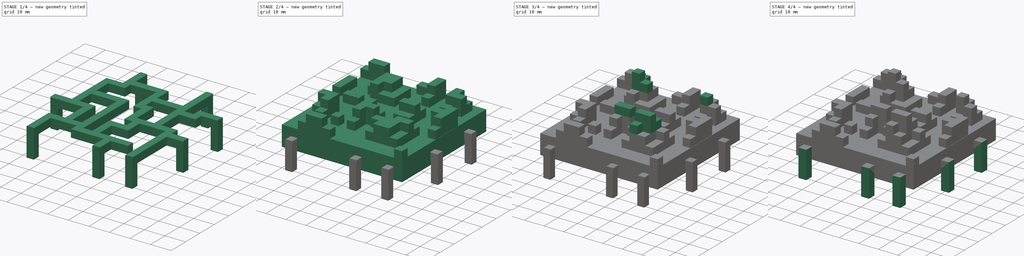
[diagram: build sequence overview — one tinted view per stage of 4, left to right]
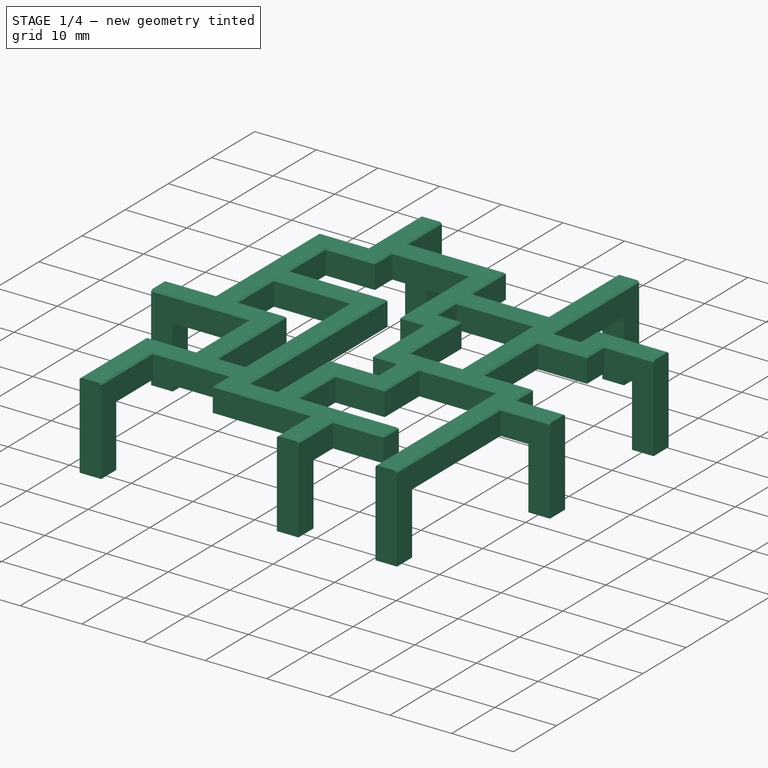
[diagram: stage 1 of 4 — iso view after this stage's code; geometry added in this stage tinted green]
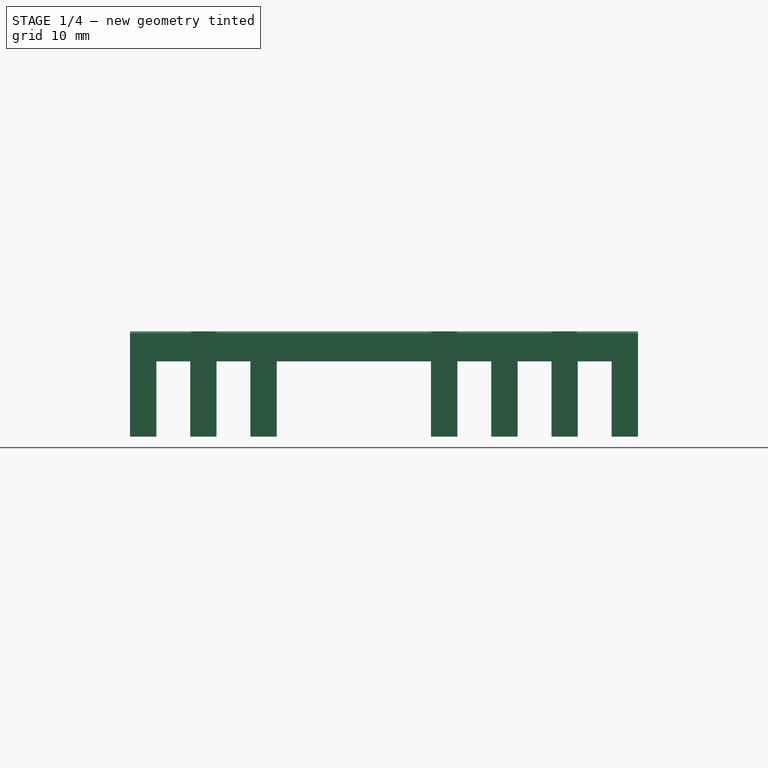
[diagram: stage 1 of 4 — front view after this stage's code; geometry added in this stage tinted green]
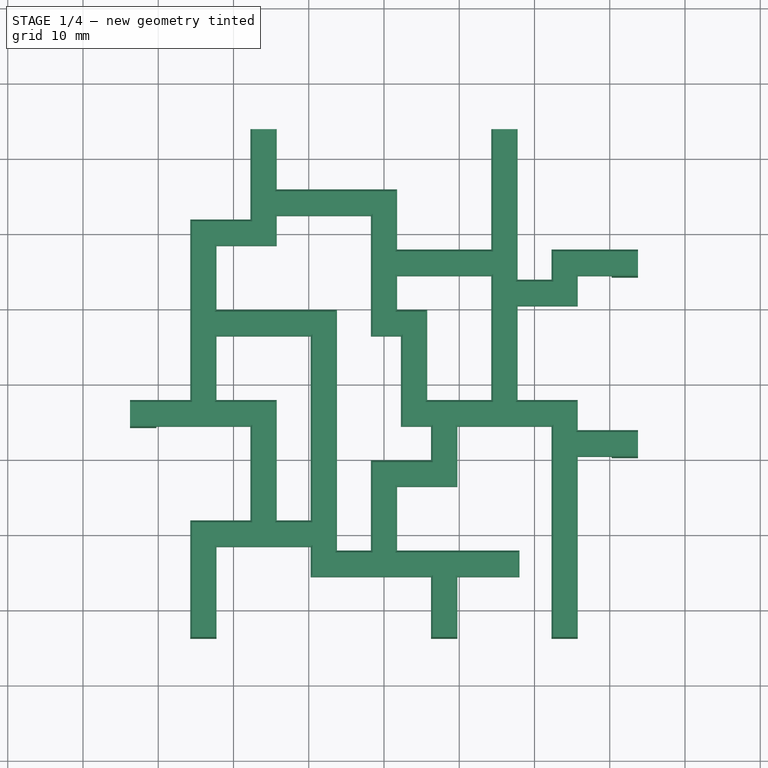
[diagram: stage 1 of 4 — top view after this stage's code; geometry added in this stage tinted green]
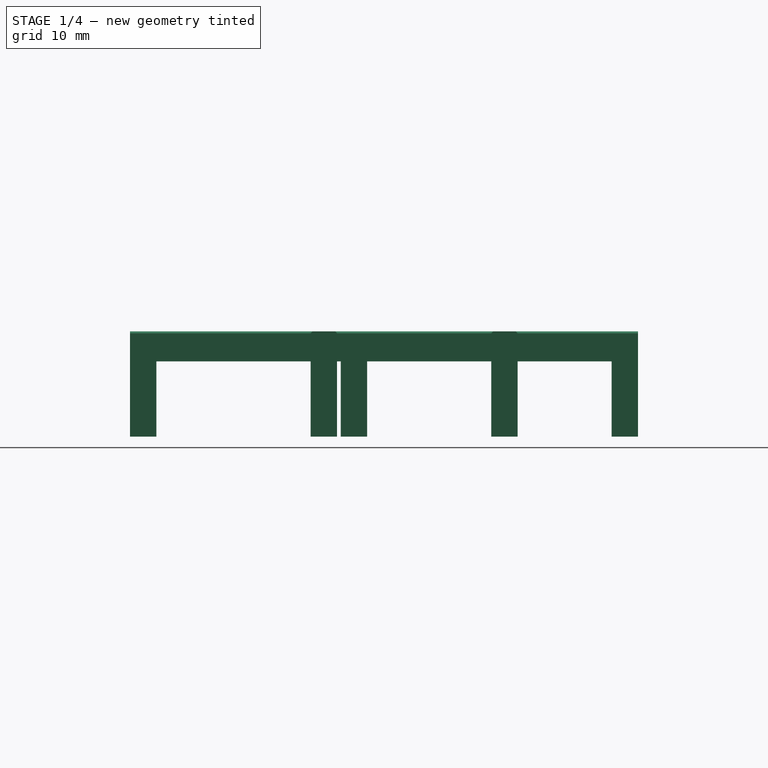
[diagram: stage 1 of 4 — right view after this stage's code; geometry added in this stage tinted green]
FCSTD DOCUMENT  (FreeCAD 0.20R29603 (Git))
Label: QStorage
License: All rights reserved
LicenseURL: http://en.wikipedia.org/wiki/All_rights_reserved
objects: Sketcher::SketchObject×11, PartDesign::Pad×9, PartDesign::Body×3, Spreadsheet::Sheet×1, PartDesign::Pocket×1, PartDesign::Chamfer×1
note: 36 computed .brp shape members not serialized (recipe doc carries the construction recipe); baked Part::Feature solids carry a one-line shape summary decoded from their .brp

FEATURE [PartDesign::Body] Body001  label="CompanionOutdated"
  Group = -> [Sketch006,Pad006,Sketch007,Pad007]
  Origin = -> Origin001
  Placement = pos=(0,0,8) rot=(0,0,1;0rad)
  Tip = -> Pad007
FEATURE [Sketcher::SketchObject] Sketch008
  ExternalGeometry = -> [Pad005]
  FullyConstrained = true
  MapMode = 5
  Placement = pos=(0,60,0) rot=(0,0.707107,0.707107;3.14159rad)
  Support = -> [Pad005]
  sketch-geometry (5):
    g0: LineSegment StartX=-37 StartY=8.5 StartZ=0 EndX=-37 EndY=1.5 EndZ=0
    g1: LineSegment StartX=-37 StartY=1.5 StartZ=0 EndX=-23 EndY=1.5 EndZ=0
    g2: LineSegment StartX=-23 StartY=1.5 StartZ=0 EndX=-23 EndY=8.5 EndZ=0
    g3: LineSegment StartX=-23 StartY=8.5 StartZ=0 EndX=-37 EndY=8.5 EndZ=0
    g4: GeomPoint X=-30 Y=5 Z=0
  constraints (12):
    c: Coincident(g0,g1)
    c: Coincident(g1,g2)
    c: Coincident(g2,g3)
    c: Coincident(g3,g0)
    c: Horizontal(g1)
    c: Horizontal(g3)
    c: Vertical(g0)
    c: Vertical(g2)
    c: Symmetric(g1,g0,g4)
    c: DistanceX(g3,g3) = 14
    c: DistanceY(g2,g2) = 7
    c: Symmetric(g-3,g-1,g4)
FEATURE [Sketcher::SketchObject] Sketch011
  AttachmentOffset = pos=(0,0,2) rot=(0,0,1;0rad)
  FullyConstrained = true
  MapMode = 2
  Placement = pos=(0,0,2) rot=(0,0,1;0rad)
  Support = -> [XY_Plane003]
  expr: Constraints[168] = 60 + <<Values>>.C_OutWidth
  expr: Constraints[178] = 0 - <<Values>>.C_OutWidth
  expr: Constraints[185] = 0 - <<Values>>.C_OutWidth
  expr: Constraints[202] = 60 + <<Values>>.C_OutWidth
  expr: Constraints[210] = <<Values>>.C_LineWidth
  expr: Constraints[212] = <<Values>>.C_LineWidth
  expr: Constraints[214] = <<Values>>.C_LineWidth
  expr: Constraints[216] = <<Values>>.C_LineWidth
  expr: Constraints[218] = <<Values>>.C_LineWidth
  expr: Constraints[224] = <<Values>>.C_LineWidth
  expr: Constraints[226] = <<Values>>.C_LineWidth
  expr: Constraints[231] = <<Values>>.C_LineWidth
  expr: Constraints[232] = <<Values>>.C_LineWidth
  expr: Constraints[234] = <<Values>>.C_LineWidth
  expr: Constraints[236] = <<Values>>.C_LineWidth
  expr: Constraints[238] = <<Values>>.C_LineWidth
  expr: Constraints[242] = <<Values>>.C_LineWidth
  expr: Constraints[244] = <<Values>>.C_LineWidth
  expr: Constraints[247] = <<Values>>.C_LineWidth
  expr: Constraints[249] = <<Values>>.C_LineWidth
  expr: Constraints[251] = <<Values>>.C_LineWidth
  expr: Constraints[254] = <<Values>>.C_LineWidth
  expr: Constraints[256] = <<Values>>.C_LineWidth
  expr: Constraints[257] = <<Values>>.C_LineWidth
  expr: Constraints[260] = <<Values>>.C_LineWidth
  expr: Constraints[263] = <<Values>>.C_LineWidth
  expr: Constraints[269] = <<Values>>.C_LineWidth
  expr: Constraints[271] = <<Values>>.C_LineWidth
  expr: Constraints[272] = <<Values>>.C_LineWidth
  sketch-geometry (100):
    g0: LineSegment StartX=12.25 StartY=63.75 StartZ=0 EndX=12.25 EndY=51.75 EndZ=0
    g1: LineSegment StartX=12.25 StartY=51.75 StartZ=0 EndX=4.25 EndY=51.75 EndZ=0
    g2: LineSegment StartX=4.25 StartY=51.75 StartZ=0 EndX=4.25 EndY=27.75 EndZ=0
    g3: LineSegment StartX=4.25 StartY=27.75 StartZ=0 EndX=-3.75 EndY=27.75 EndZ=0
    g4: LineSegment StartX=-3.75 StartY=27.75 StartZ=0 EndX=-3.75 EndY=24.25 EndZ=0
    g5: LineSegment StartX=-3.75 StartY=24.25 StartZ=0 EndX=12.25 EndY=24.25 EndZ=0
    g6: LineSegment StartX=12.25 StartY=24.25 StartZ=0 EndX=12.25 EndY=11.75 EndZ=0
    g7: LineSegment StartX=12.25 StartY=11.75 StartZ=0 EndX=4.25 EndY=11.75 EndZ=0
    g8: LineSegment StartX=4.25 StartY=11.75 StartZ=0 EndX=4.25 EndY=-3.75 EndZ=0
    g9: LineSegment StartX=4.25 StartY=-3.75 StartZ=0 EndX=7.75 EndY=-3.75 EndZ=0
    g10: LineSegment StartX=7.75 StartY=-3.75 StartZ=0 EndX=7.75 EndY=8.25 EndZ=0
    g11: LineSegment StartX=7.75 StartY=8.25 StartZ=0 EndX=20.25 EndY=8.25 EndZ=0
    g12: LineSegment StartX=20.25 StartY=8.25 StartZ=0 EndX=20.25 EndY=4.25 EndZ=0
    g13: LineSegment StartX=20.25 StartY=4.25 StartZ=0 EndX=36.25 EndY=4.25 EndZ=0
    g14: LineSegment StartX=36.25 StartY=4.25 StartZ=0 EndX=36.25 EndY=-3.75 EndZ=0
    g15: LineSegment StartX=36.25 StartY=-3.75 StartZ=0 EndX=39.75 EndY=-3.75 EndZ=0
    g16: LineSegment StartX=39.75 StartY=-3.75 StartZ=0 EndX=39.75 EndY=4.25 EndZ=0
    g17: LineSegment StartX=39.75 StartY=4.25 StartZ=0 EndX=48 EndY=4.25 EndZ=0
    g18: LineSegment StartX=48 StartY=4.25 StartZ=0 EndX=48 EndY=7.75 EndZ=0
    g19: LineSegment StartX=48 StartY=7.75 StartZ=0 EndX=31.75 EndY=7.75 EndZ=0
    g20: LineSegment StartX=31.75 StartY=7.75 StartZ=0 EndX=31.75 EndY=16.25 EndZ=0
    g21: LineSegment StartX=31.75 StartY=16.25 StartZ=0 EndX=39.75 EndY=16.25 EndZ=0
    g22: LineSegment StartX=39.75 StartY=16.25 StartZ=0 EndX=39.75 EndY=24.25 EndZ=0
    g23: LineSegment StartX=39.75 StartY=24.25 StartZ=0 EndX=52.25 EndY=24.25 EndZ=0
    g24: LineSegment StartX=52.25 StartY=24.25 StartZ=0 EndX=52.25 EndY=-3.75 EndZ=0
    g25: LineSegment StartX=52.25 StartY=-3.75 StartZ=0 EndX=55.75 EndY=-3.75 EndZ=0
    g26: LineSegment StartX=55.75 StartY=-3.75 StartZ=0 EndX=55.75 EndY=20.25 EndZ=0
    g27: LineSegment StartX=55.75 StartY=20.25 StartZ=0 EndX=63.75 EndY=20.25 EndZ=0
    g28: LineSegment StartX=63.75 StartY=20.25 StartZ=0 EndX=63.75 EndY=23.75 EndZ=0
    g29: LineSegment StartX=63.75 StartY=23.75 StartZ=0 EndX=55.75 EndY=23.75 EndZ=0
    g30: LineSegment StartX=55.75 StartY=23.75 StartZ=0 EndX=55.75 EndY=27.75 EndZ=0
    g31: LineSegment StartX=55.75 StartY=27.75 StartZ=0 EndX=47.75 EndY=27.75 EndZ=0
    g32: LineSegment StartX=47.75 StartY=27.75 StartZ=0 EndX=47.75 EndY=40.25 EndZ=0
    g33: LineSegment StartX=47.75 StartY=40.25 StartZ=0 EndX=55.75 EndY=40.25 EndZ=0
    g34: LineSegment StartX=55.75 StartY=40.25 StartZ=0 EndX=55.75 EndY=44.25 EndZ=0
    g35: LineSegment StartX=55.75 StartY=44.25 StartZ=0 EndX=63.75 EndY=44.25 EndZ=0
    g36: LineSegment StartX=63.75 StartY=44.25 StartZ=0 EndX=63.75 EndY=47.75 EndZ=0
    g37: LineSegment StartX=63.75 StartY=47.75 StartZ=0 EndX=52.25 EndY=47.75 EndZ=0
    g38: LineSegment StartX=52.25 StartY=47.75 StartZ=0 EndX=52.25 EndY=43.75 EndZ=0
    g39: LineSegment StartX=52.25 StartY=43.75 StartZ=0 EndX=47.75 EndY=43.75 EndZ=0
    g40: LineSegment StartX=47.75 StartY=43.75 StartZ=0 EndX=47.75 EndY=63.75 EndZ=0
    g41: LineSegment StartX=47.75 StartY=63.75 StartZ=0 EndX=44.25 EndY=63.75 EndZ=0
    g42: LineSegment StartX=44.25 StartY=63.75 StartZ=0 EndX=44.25 EndY=47.75 EndZ=0
    g43: LineSegment StartX=44.25 StartY=47.75 StartZ=0 EndX=31.75 EndY=47.75 EndZ=0
    g44: LineSegment StartX=31.75 StartY=47.75 StartZ=0 EndX=31.75 EndY=55.75 EndZ=0
    g45: LineSegment StartX=31.75 StartY=55.75 StartZ=0 EndX=15.75 EndY=55.75 EndZ=0
    g46: LineSegment StartX=15.75 StartY=55.75 StartZ=0 EndX=15.75 EndY=63.75 EndZ=0
    g47: LineSegment StartX=15.75 StartY=63.75 StartZ=0 EndX=12.25 EndY=63.75 EndZ=0
    g48: LineSegment StartX=15.75 StartY=52.25 StartZ=0 EndX=15.75 EndY=48.25 EndZ=0
    g49: LineSegment StartX=15.75 StartY=48.25 StartZ=0 EndX=7.75 EndY=48.25 EndZ=0
    g50: LineSegment StartX=7.75 StartY=48.25 StartZ=0 EndX=7.75 EndY=39.75 EndZ=0
    g51: LineSegment StartX=7.75 StartY=39.75 StartZ=0 EndX=23.75 EndY=39.75 EndZ=0
    g52: LineSegment StartX=23.75 StartY=39.75 StartZ=0 EndX=23.75 EndY=7.75 EndZ=0
    g53: LineSegment StartX=23.75 StartY=7.75 StartZ=0 EndX=28.25 EndY=7.75 EndZ=0
    g54: LineSegment StartX=28.25 StartY=7.75 StartZ=0 EndX=28.25 EndY=19.75 EndZ=0
    g55: LineSegment StartX=28.25 StartY=19.75 StartZ=0 EndX=36.25 EndY=19.75 EndZ=0
    g56: LineSegment StartX=36.25 StartY=19.75 StartZ=0 EndX=36.25 EndY=24.25 EndZ=0
    g57: LineSegment StartX=36.25 StartY=24.25 StartZ=0 EndX=32.25 EndY=24.25 EndZ=0
    g58: LineSegment StartX=28.25 StartY=52.25 StartZ=0 EndX=15.75 EndY=52.25 EndZ=0
    g59: LineSegment StartX=31.75 StartY=44.25 StartZ=0 EndX=44.25 EndY=44.25 EndZ=0
    g60: LineSegment StartX=44.25 StartY=44.25 StartZ=0 EndX=44.25 EndY=27.75 EndZ=0
    g61: LineSegment StartX=44.25 StartY=27.75 StartZ=0 EndX=35.75 EndY=27.75 EndZ=0
    g62: LineSegment StartX=35.75 StartY=27.75 StartZ=0 EndX=35.75 EndY=39.75 EndZ=0
    g63: LineSegment StartX=35.75 StartY=39.75 StartZ=0 EndX=31.75 EndY=39.75 EndZ=0
    g64: LineSegment StartX=31.75 StartY=39.75 StartZ=0 EndX=31.75 EndY=44.25 EndZ=0
    g65: LineSegment StartX=32.25 StartY=24.25 StartZ=0 EndX=32.25 EndY=36.25 EndZ=0
    g66: LineSegment StartX=32.25 StartY=36.25 StartZ=0 EndX=28.25 EndY=36.25 EndZ=0
    g67: LineSegment StartX=28.25 StartY=36.25 StartZ=0 EndX=28.25 EndY=52.25 EndZ=0
    g68: LineSegment StartX=7.75 StartY=36.25 StartZ=0 EndX=20.25 EndY=36.25 EndZ=0
    g69: LineSegment StartX=20.25 StartY=36.25 StartZ=0 EndX=20.25 EndY=11.75 EndZ=0
    g70: LineSegment StartX=20.25 StartY=11.75 StartZ=0 EndX=15.75 EndY=11.75 EndZ=0
    g71: LineSegment StartX=15.75 StartY=11.75 StartZ=0 EndX=15.75 EndY=27.75 EndZ=0
    g72: LineSegment StartX=15.75 StartY=27.75 StartZ=0 EndX=7.75 EndY=27.75 EndZ=0
    g73: LineSegment StartX=7.75 StartY=27.75 StartZ=0 EndX=7.75 EndY=36.25 EndZ=0
    g74: LineSegment StartX=14 StartY=63.75 StartZ=0 EndX=14 EndY=50 EndZ=0
    g75: LineSegment StartX=14 StartY=50 StartZ=0 EndX=6 EndY=50 EndZ=0
    g76: LineSegment StartX=14 StartY=54 StartZ=0 EndX=30 EndY=54 EndZ=0
    g77: LineSegment StartX=30 StartY=54 StartZ=0 EndX=30 EndY=38 EndZ=0
    g78: LineSegment StartX=30 StartY=38 StartZ=0 EndX=34 EndY=38 EndZ=0
    g79: LineSegment StartX=30 StartY=46 StartZ=0 EndX=46 EndY=46 EndZ=0
    g80: LineSegment StartX=6 StartY=50 StartZ=0 EndX=6 EndY=26 EndZ=0
    g81: LineSegment StartX=-3.75 StartY=26 StartZ=0 EndX=14 EndY=26 EndZ=0
    g82: LineSegment StartX=14 StartY=26 StartZ=0 EndX=14 EndY=10 EndZ=0
    g83: LineSegment StartX=6 StartY=-3.75 StartZ=0 EndX=6 EndY=10 EndZ=0
    g84: LineSegment StartX=6 StartY=10 StartZ=0 EndX=22 EndY=10 EndZ=0
    g85: LineSegment StartX=6 StartY=38 StartZ=0 EndX=22 EndY=38 EndZ=0
    g86: LineSegment StartX=22 StartY=6 StartZ=0 EndX=48 EndY=6 EndZ=0
    g87: LineSegment StartX=38 StartY=-3.75 StartZ=0 EndX=38 EndY=6 EndZ=0
    g88: LineSegment StartX=34 StartY=38 StartZ=0 EndX=34 EndY=26 EndZ=0
    g89: LineSegment StartX=34 StartY=26 StartZ=0 EndX=54 EndY=26 EndZ=0
    g90: LineSegment StartX=54 StartY=26 StartZ=0 EndX=54 EndY=-3.75 EndZ=0
    g91: LineSegment StartX=54 StartY=22 StartZ=0 EndX=63.75 EndY=22 EndZ=0
    g92: LineSegment StartX=30 StartY=6 StartZ=0 EndX=30 EndY=18 EndZ=0
    g93: LineSegment StartX=30 StartY=18 StartZ=0 EndX=38 EndY=18 EndZ=0
    g94: LineSegment StartX=38 StartY=18 StartZ=0 EndX=38 EndY=26 EndZ=0
    g95: LineSegment StartX=46 StartY=26 StartZ=0 EndX=46 EndY=63.75 EndZ=0
    g96: LineSegment StartX=46 StartY=42 StartZ=0 EndX=54 EndY=42 EndZ=0
    g97: LineSegment StartX=54 StartY=42 StartZ=0 EndX=54 EndY=46 EndZ=0
    g98: LineSegment StartX=54 StartY=46 StartZ=0 EndX=63.75 EndY=46 EndZ=0
    g99: LineSegment StartX=22 StartY=38 StartZ=0 EndX=22 EndY=6 EndZ=0
  constraints (279):
    c: Vertical(g0)
    c: Coincident(g0,g1)
    c: Coincident(g1,g2)
    c: Vertical(g2)
    c: Coincident(g2,g3)
    c: Horizontal(g3)
    c: Coincident(g3,g4)
    c: Coincident(g4,g5)
    c: Coincident(g5,g6)
    c: Vertical(g6)
    c: Coincident(g6,g7)
    c: Horizontal(g7)
    c: Coincident(g7,g8)
    c: Vertical(g8)
    c: Coincident(g8,g9)
    c: Coincident(g9,g10)
    c: Coincident(g10,g11)
    c: Horizontal(g11)
    c: Coincident(g11,g12)
    c: Vertical(g12)
    c: Coincident(g12,g13)
    c: Horizontal(g13)
    c: Coincident(g13,g14)
    c: Vertical(g14)
    c: Coincident(g14,g15)
    c: Horizontal(g15)
    c: Coincident(g15,g16)
    c: Vertical(g16)
    c: Coincident(g16,g17)
    c: Horizontal(g17)
    c: Coincident(g17,g18)
    c: Vertical(g18)
    c: Coincident(g18,g19)
    c: Horizontal(g19)
    c: Coincident(g19,g20)
    c: Vertical(g20)
    c: Coincident(g20,g21)
    c: Coincident(g21,g22)
    c: Coincident(g22,g23)
    c: Horizontal(g23)
    c: Coincident(g23,g24)
    c: Vertical(g24)
    c: Coincident(g24,g25)
    c: Coincident(g25,g26)
    c: Vertical(g26)
    c: Coincident(g26,g27)
    c: Horizontal(g27)
    c: Coincident(g27,g28)
    c: Coincident(g28,g29)
    c: Coincident(g29,g30)
    c: Coincident(g30,g31)
    c: Coincident(g31,g32)
    c: Vertical(g32)
    c: Coincident(g32,g33)
    c: Horizontal(g33)
    c: Coincident(g33,g34)
    c: Vertical(g34)
    c: Coincident(g34,g35)
    c: Horizontal(g35)
    c: Coincident(g35,g36)
    c: Coincident(g36,g37)
    c: Horizontal(g37)
    c: Coincident(g37,g38)
    c: Vertical(g38)
    c: Coincident(g38,g39)
    c: Horizontal(g39)
    c: Coincident(g39,g40)
    c: Vertical(g40)
    c: Coincident(g40,g41)
    c: Coincident(g41,g42)
    c: Vertical(g42)
    c: Coincident(g42,g43)
    c: Horizontal(g43)
    c: Coincident(g43,g44)
    c: Coincident(g44,g45)
    c: Horizontal(g45)
    c: Coincident(g45,g46)
    c: Vertical(g46)
    c: Coincident(g46,g47)
    c: Coincident(g47,g0)
    c: Coincident(g48,g49)
    c: Horizontal(g49)
    c: Coincident(g49,g50)
    c: Vertical(g50)
    c: Coincident(g50,g51)
    c: Horizontal(g51)
    c: Coincident(g51,g52)
    c: Vertical(g52)
    c: Coincident(g52,g53)
    c: Horizontal(g53)
    c: Coincident(g53,g54)
    c: Coincident(g54,g55)
    c: Horizontal(g55)
    c: Coincident(g55,g56)
    c: Vertical(g56)
    c: Coincident(g56,g57)
    c: Horizontal(g57)
    c: Coincident(g58,g48)
    c: Horizontal(g58)
    c: Horizontal(g59)
    c: Coincident(g59,g60)
    c: Vertical(g60)
    c: Coincident(g60,g61)
    c: Horizontal(g61)
    c: Coincident(g61,g62)
    c: Vertical(g62)
    c: Coincident(g62,g63)
    c: Coincident(g63,g64)
    c: Coincident(g64,g59)
    c: Vertical(g64)
    c: Coincident(g57,g65)
    c: Coincident(g65,g66)
    c: Horizontal(g66)
    c: Coincident(g66,g67)
    c: Coincident(g67,g58)
    c: Vertical(g67)
    c: Coincident(g68,g69)
    c: Vertical(g69)
    c: Coincident(g69,g70)
    c: Horizontal(g70)
    c: Coincident(g70,g71)
    c: Coincident(g71,g72)
    c: Horizontal(g72)
    c: Coincident(g72,g73)
    c: Coincident(g73,g68)
    c: Vertical(g74)
    c: Coincident(g75,g74)
    c: Horizontal(g75)
    c: PointOnObject(g76,g74)
    c: Coincident(g77,g76)
    c: Vertical(g77)
    c: Horizontal(g78)
    c: PointOnObject(g79,g77)
    c: Horizontal(g79)
    c: Coincident(g80,g75)
    c: Vertical(g80)
    c: Horizontal(g81)
    c: Coincident(g82,g81)
    c: Vertical(g82)
    c: Vertical(g83)
    c: Coincident(g84,g83)
    c: Horizontal(g84)
    c: PointOnObject(g85,g80)
    c: Horizontal(g85)
    c: Horizontal(g86)
    c: PointOnObject(g87,g86)
    c: Vertical(g87)
    c: Coincident(g88,g78)
    c: Vertical(g88)
    c: Horizontal(g89)
    c: Vertical(g90)
    c: PointOnObject(g91,g90)
    c: Horizontal(g91)
    c: PointOnObject(g92,g86)
    c: Vertical(g92)
    c: Coincident(g93,g92)
    c: Horizontal(g93)
    c: Coincident(g94,g93)
    c: PointOnObject(g94,g89)
    c: Vertical(g94)
    c: PointOnObject(g95,g89)
    c: Vertical(g95)
    c: PointOnObject(g96,g95)
    c: Horizontal(g96)
    c: Coincident(g97,g96)
    c: Vertical(g97)
    c: Coincident(g98,g97)
    c: DistanceX(g74) = 14
    c: DistanceY(g74) = 63.75
    c: DistanceY(g76) = 54
    c: DistanceX(g76) = 30
    c: DistanceY(g74) = 50
    c: DistanceX(g75) = 6
    c: DistanceX(g85) = 22
    c: DistanceY(g85) = 38
    c: PointOnObject(g80,g81)
    c: DistanceY(g81) = 26
    c: DistanceX(g81) = 14
    c: DistanceX(g81) = -3.75
    c: PointOnObject(g82,g84)
    c: DistanceX(g83) = 6
    c: DistanceY(g83) = 10
    c: DistanceY(g86) = 6
    c: DistanceX(g92) = 30
    c: DistanceX(g87) = 38
    c: DistanceY(g87) = -3.75
    c: DistanceX(g86) = 48
    c: DistanceX(g90) = 54
    c: DistanceY(g91) = 22
    c: Coincident(g88,g89)
    c: DistanceY(g89) = 26
    c: Coincident(g89,g90)
    c: Coincident(g99,g85)
    c: Coincident(g99,g86)
    c: Vertical(g99)
    c: PointOnObject(g84,g99)
    c: DistanceY(g92) = 18
    c: DistanceX(g93) = 38
    c: DistanceX(g88) = 34
    c: DistanceY(g78) = 38
    c: Coincident(g77,g78)
    c: PointOnObject(g79,g95)
    c: DistanceX(g98) = 63.75
    c: DistanceY(g98) = 46
    c: DistanceX(g95) = 46
    c: DistanceX(g97) = 54
    c: DistanceY(g79) = 46
    c: DistanceY(g96) = 42
    c: Symmetric(g46,g0,g74)
    c: PointOnObject(g74,g47)
    c: DistanceX(g47,g47) = 3.5
    c: Symmetric(g48,g45,g76)
    c: DistanceY(g48,g45) = 3.5
    c: Symmetric(g0,g48,g74)
    c: DistanceY(g48,g0) = 3.5
    c: Symmetric(g49,g1,g75)
    c: DistanceX(g1,g49) = 3.5
    c: Symmetric(g50,g68,g85)
    c: DistanceY(g68,g50) = 3.5
    c: Symmetric(g68,g51,g85)
    c: DistanceX(g68,g51) = 3.5
    c: Symmetric(g2,g72,g80)
    c: Symmetric(g3,g4,g81)
    c: PointOnObject(g81,g4)
    c: DistanceY(g4,g3) = 3.5
    c: Symmetric(g71,g5,g81)
    c: DistanceX(g5,g71) = 3.5
    c: Symmetric(g70,g6,g82)
    c: Symmetric(g7,g10,g83)
    c: Symmetric(g9,g8,g83)
    c: PointOnObject(g83,g9)
    c: DistanceX(g8,g9) = 3.5
    c: DistanceY(g10,g7) = 3.5
    c: Symmetric(g12,g52,g86)
    c: DistanceY(g12,g52) = 3.5
    c: Symmetric(g53,g19,g92)
    c: DistanceX(g53,g19) = 3.5
    c: Symmetric(g16,g13,g87)
    c: DistanceX(g13,g16) = 3.5
    c: PointOnObject(g87,g15)
    c: PointOnObject(g86,g18)
    c: Symmetric(g54,g20,g92)
    c: DistanceY(g20,g54) = 3.5
    c: Symmetric(g55,g21,g93)
    c: DistanceX(g55,g21) = 3.5
    c: Symmetric(g56,g22,g94)
    c: Symmetric(g57,g61,g88)
    c: DistanceY(g57,g61) = 3.5
    c: Symmetric(g65,g62,g78)
    c: DistanceY(g65,g62) = 3.5
    c: Symmetric(g66,g63,g77)
    c: DistanceX(g66,g63) = 3.5
    c: Symmetric(g58,g44,g76)
    c: Symmetric(g43,g59,g79)
    c: DistanceY(g59,g43) = 3.5
    c: Symmetric(g60,g31,g95)
    c: DistanceX(g60,g31) = 3.5
    c: DistanceX(g57,g61) = 3.5
    c: PointOnObject(g91,g28)
    c: Symmetric(g28,g27,g91)
    c: DistanceY(g27,g28) = 3.5
    c: PointOnObject(g90,g25)
    c: Symmetric(g25,g24,g90)
    c: DistanceX(g24,g25) = 3.5
    c: Symmetric(g26,g29,g91)
    c: Symmetric(g30,g23,g89)
    c: Symmetric(g32,g39,g96)
    c: PointOnObject(g98,g36)
    c: Symmetric(g35,g36,g98)
    c: DistanceY(g35,g36) = 3.5
    c: Symmetric(g34,g37,g97)
    c: DistanceX(g37,g34) = 3.5
    c: DistanceY(g32,g39) = 3.5
    c: PointOnObject(g95,g41)
    c: Symmetric(g41,g40,g95)
    c: Horizontal(g90,g87)
    c: Horizontal(g83,g87)
    c: Horizontal(g95,g74)
    c: Vertical(g98,g91)
FEATURE [PartDesign::Pad] Pad009
  Direction = (0,0,1)
  Length = 4
  Length2 = 10
  Profile = -> Sketch011
  ReferenceAxis = -> Sketch011 [N_Axis]
  Type = 0
FEATURE [Sketcher::SketchObject] Sketch012
  ExternalGeometry = -> [Pad009]
  FullyConstrained = true
  MapMode = 5
  Placement = pos=(0,0,2) rot=(1,0,0;3.14159rad)
  Support = -> [Pad009]
  sketch-geometry (32):
    g0: LineSegment StartX=7.75 StartY=3.75 StartZ=0 EndX=4.25 EndY=3.75 EndZ=0
    g1: LineSegment StartX=4.25 StartY=3.75 StartZ=0 EndX=4.25 EndY=0.25 EndZ=0
    g2: LineSegment StartX=4.25 StartY=0.25 StartZ=0 EndX=7.75 EndY=0.25 EndZ=0
    g3: LineSegment StartX=7.75 StartY=0.25 StartZ=0 EndX=7.75 EndY=3.75 EndZ=0
    g4: LineSegment StartX=39.75 StartY=3.75 StartZ=0 EndX=36.25 EndY=3.75 EndZ=0
    g5: LineSegment StartX=36.25 StartY=3.75 StartZ=0 EndX=36.25 EndY=0.25 EndZ=0
    g6: LineSegment StartX=36.25 StartY=0.25 StartZ=0 EndX=39.75 EndY=0.25 EndZ=0
    g7: LineSegment StartX=39.75 StartY=0.25 StartZ=0 EndX=39.75 EndY=3.75 EndZ=0
    g8: LineSegment StartX=55.75 StartY=3.75 StartZ=0 EndX=52.25 EndY=3.75 EndZ=0
    g9: LineSegment StartX=52.25 StartY=3.75 StartZ=0 EndX=52.25 EndY=0.25 EndZ=0
    g10: LineSegment StartX=52.25 StartY=0.25 StartZ=0 EndX=55.75 EndY=0.25 EndZ=0
    g11: LineSegment StartX=55.75 StartY=0.25 StartZ=0 EndX=55.75 EndY=3.75 EndZ=0
    g12: LineSegment StartX=63.75 StartY=-20.25 StartZ=0 EndX=60.25 EndY=-20.25 EndZ=0
    g13: LineSegment StartX=60.25 StartY=-20.25 StartZ=0 EndX=60.25 EndY=-23.75 EndZ=0
    g14: LineSegment StartX=60.25 StartY=-23.75 StartZ=0 EndX=63.75 EndY=-23.75 EndZ=0
    g15: LineSegment StartX=63.75 StartY=-23.75 StartZ=0 EndX=63.75 EndY=-20.25 EndZ=0
    g16: LineSegment StartX=63.75 StartY=-44.25 StartZ=0 EndX=60.25 EndY=-44.25 EndZ=0
    g17: LineSegment StartX=60.25 StartY=-44.25 StartZ=0 EndX=60.25 EndY=-47.75 EndZ=0
    g18: LineSegment StartX=60.25 StartY=-47.75 StartZ=0 EndX=63.75 EndY=-47.75 EndZ=0
    g19: LineSegment StartX=63.75 StartY=-47.75 StartZ=0 EndX=63.75 EndY=-44.25 EndZ=0
    g20: LineSegment StartX=47.75 StartY=-63.75 StartZ=0 EndX=44.25 EndY=-63.75 EndZ=0
    g21: LineSegment StartX=44.25 StartY=-63.75 StartZ=0 EndX=44.25 EndY=-60.25 EndZ=0
    g22: LineSegment StartX=44.25 StartY=-60.25 StartZ=0 EndX=47.75 EndY=-60.25 EndZ=0
    g23: LineSegment StartX=47.75 StartY=-60.25 StartZ=0 EndX=47.75 EndY=-63.75 EndZ=0
    g24: LineSegment StartX=15.75 StartY=-63.75 StartZ=0 EndX=12.25 EndY=-63.75 EndZ=0
    g25: LineSegment StartX=12.25 StartY=-63.75 StartZ=0 EndX=12.25 EndY=-60.25 EndZ=0
    g26: LineSegment StartX=12.25 StartY=-60.25 StartZ=0 EndX=15.75 EndY=-60.25 EndZ=0
    g27: LineSegment StartX=15.75 StartY=-60.25 StartZ=0 EndX=15.75 EndY=-63.75 EndZ=0
    g28: LineSegment StartX=-3.75 StartY=-24.25 StartZ=0 EndX=-0.25 EndY=-24.25 EndZ=0
    g29: LineSegment StartX=-0.25 StartY=-24.25 StartZ=0 EndX=-0.25 EndY=-27.75 EndZ=0
    g30: LineSegment StartX=-0.25 StartY=-27.75 StartZ=0 EndX=-3.75 EndY=-27.75 EndZ=0
    g31: LineSegment StartX=-3.75 StartY=-27.75 StartZ=0 EndX=-3.75 EndY=-24.25 EndZ=0
  constraints (87):
    c: Coincident(g0,g1)
    c: Coincident(g1,g2)
    c: Coincident(g2,g3)
    c: Coincident(g3,g0)
    c: Horizontal(g2)
    c: Vertical(g1)
    c: Vertical(g3)
    c: Coincident(g0,g-3)
    c: Coincident(g4,g5)
    c: Coincident(g5,g6)
    c: Coincident(g6,g7)
    c: Coincident(g7,g4)
    c: Horizontal(g4)
    c: Horizontal(g6)
    c: Vertical(g5)
    c: Vertical(g7)
    c: Coincident(g4,g-5)
    c: Coincident(g8,g9)
    c: Coincident(g9,g10)
    c: Coincident(g10,g11)
    c: Coincident(g11,g8)
    c: Horizontal(g8)
    c: Horizontal(g10)
    c: Vertical(g9)
    c: Vertical(g11)
    c: Coincident(g8,g-6)
    c: Coincident(g12,g13)
    c: Coincident(g13,g14)
    c: Coincident(g14,g15)
    c: Coincident(g15,g12)
    c: Horizontal(g12)
    c: Horizontal(g14)
    c: Vertical(g13)
    c: Vertical(g15)
    c: Coincident(g12,g-7)
    c: Coincident(g16,g17)
    c: Coincident(g17,g18)
    c: Coincident(g18,g19)
    c: Coincident(g19,g16)
    c: Horizontal(g16)
    c: Horizontal(g18)
    c: Vertical(g17)
    c: Vertical(g19)
    c: Coincident(g16,g-8)
    c: Coincident(g20,g21)
    c: Coincident(g21,g22)
    c: Coincident(g22,g23)
    c: Coincident(g23,g20)
    c: Horizontal(g20)
    c: Horizontal(g22)
    c: Vertical(g21)
    c: Vertical(g23)
    c: Coincident(g20,g-9)
    c: Coincident(g24,g25)
    c: Coincident(g25,g26)
    c: Coincident(g26,g27)
    c: Coincident(g27,g24)
    c: Horizontal(g24)
    c: Horizontal(g26)
    c: Vertical(g25)
    c: Vertical(g27)
    c: Coincident(g24,g-10)
    c: Coincident(g28,g29)
    c: Coincident(g29,g30)
    c: Coincident(g30,g31)
    c: Coincident(g31,g28)
    c: Horizontal(g28)
    c: Horizontal(g30)
    c: Vertical(g29)
    c: Vertical(g31)
    c: Coincident(g28,g-11)
    c: Equal(g0,g3)
    c: Equal(g3,g4)
    c: Equal(g4,g7)
    c: Equal(g7,g8)
    c: Equal(g8,g11)
    c: Equal(g11,g12)
    c: Equal(g12,g15)
    c: Equal(g15,g16)
    c: Equal(g16,g19)
    c: Equal(g19,g22)
    c: Equal(g22,g23)
    c: Equal(g23,g26)
    c: Equal(g26,g27)
    c: Equal(g27,g28)
    c: Equal(g28,g29)
    c: Coincident(g0,g-4)
FEATURE [PartDesign::Pad] Pad010
  BaseFeature = -> Pad009
  Direction = (0,0,-1)
  Length = 10
  Length2 = 10
  Profile = -> Sketch012
  ReferenceAxis = -> Sketch012 [N_Axis]
  Type = 0
FEATURE [PartDesign::Body] Body
  Group = -> [Sketch,Pad,Sketch001,Sketch002,Pad002,Sketch003,Pad003,Sketch004,Pad004,Sketch005,Pad005,Sketch008,Pocket]
  Origin = -> Origin
  Tip = -> Pocket
FEATURE [PartDesign::Chamfer] Chamfer
  Angle = 45
  Base = -> Pad010 [Edge114,Edge112,Edge111,Edge109,Edge108,Edge116,Edge115,Edge154,Edge107,Edge106,Edge105,Edge104,Edge103,Edge102,Edge101,Edge99,Edge98,Edge97,Edge96,Edge95,Edge93,Edge92,Edge91,Edge90,Edge149,Edge148,Edge147,Edge146,Edge151,Edge150,Edge138,Edge137,Edge136,Edge139,Edge140,Edge141,Edge142,Edge155,Edge153,Edge117,+26 more]
  BaseFeature = -> Pad010
  ChamferType = 0
  FlipDirection = false
  Size = 0.25
  Size2 = 1
  SupportTransform = false
  UseAllEdges = false
FEATURE [PartDesign::Body] Body003  label="Companion"
  Group = -> [Sketch011,Pad009,Sketch012,Pad010,Chamfer]
  Origin = -> Origin003
  Placement = pos=(0,0,8) rot=(0,0,1;0rad)
  Tip = -> Chamfer
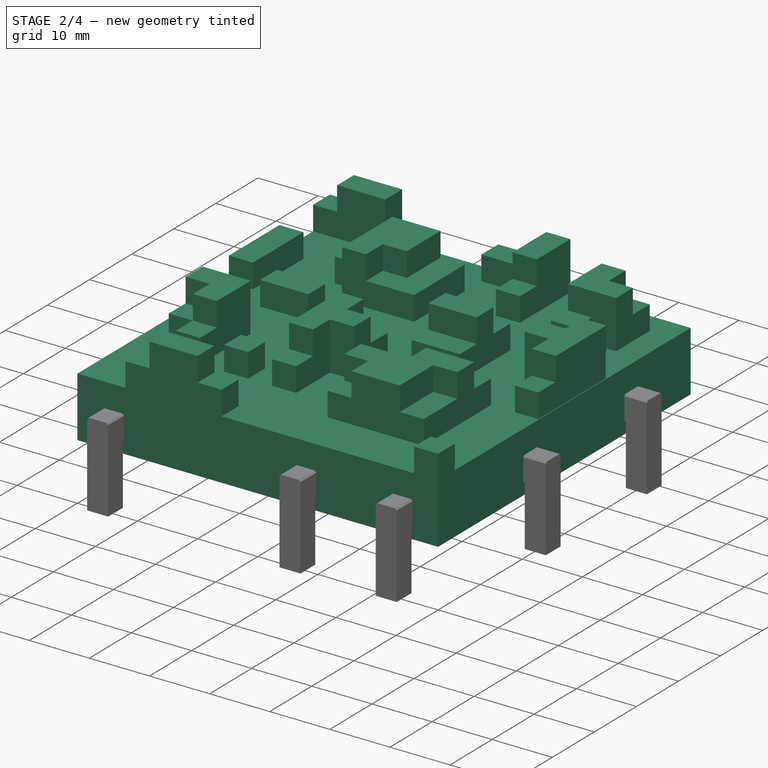
[diagram: stage 2 of 4 — iso view after this stage's code; geometry added in this stage tinted green]
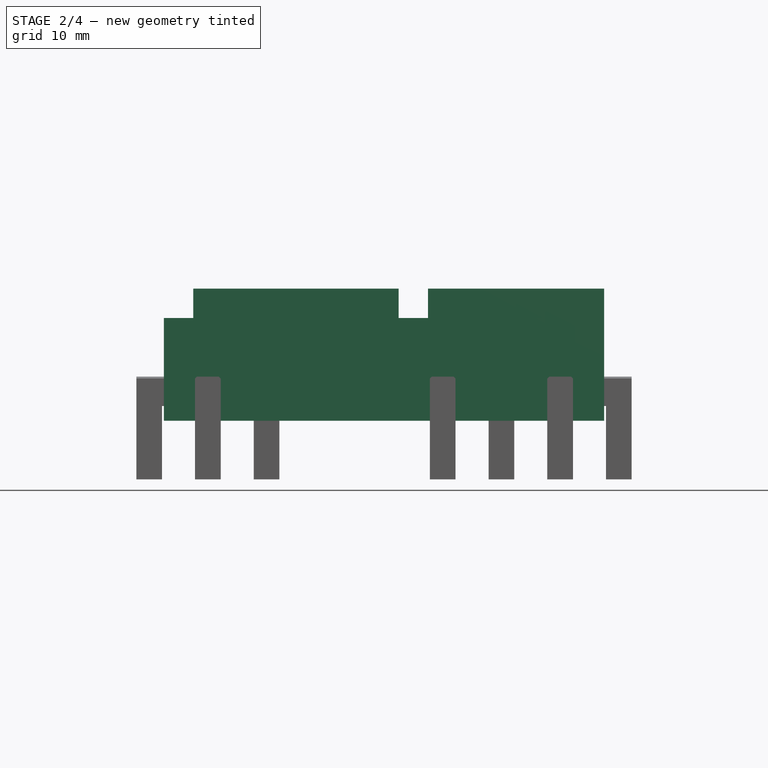
[diagram: stage 2 of 4 — front view after this stage's code; geometry added in this stage tinted green]
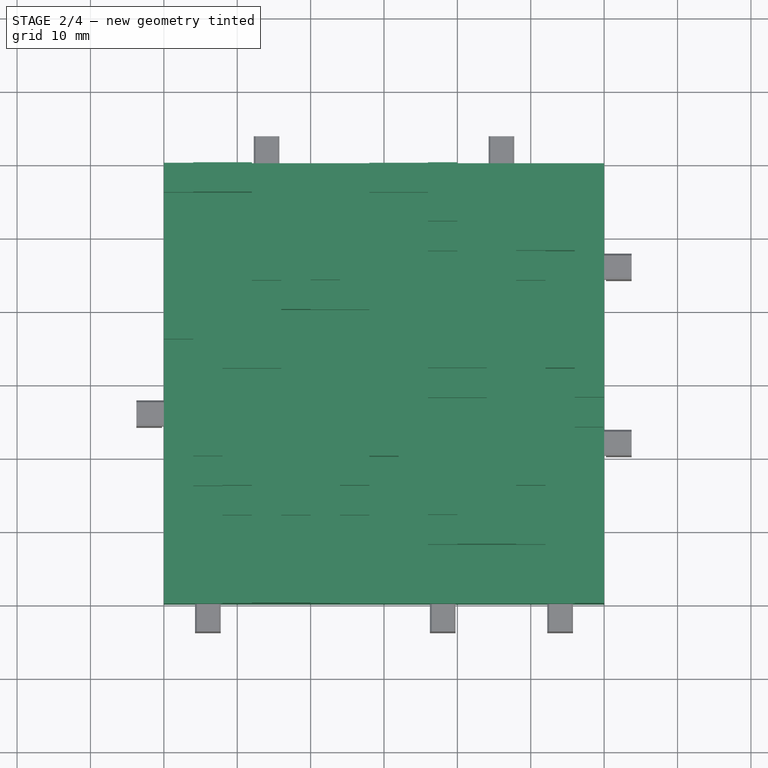
[diagram: stage 2 of 4 — top view after this stage's code; geometry added in this stage tinted green]
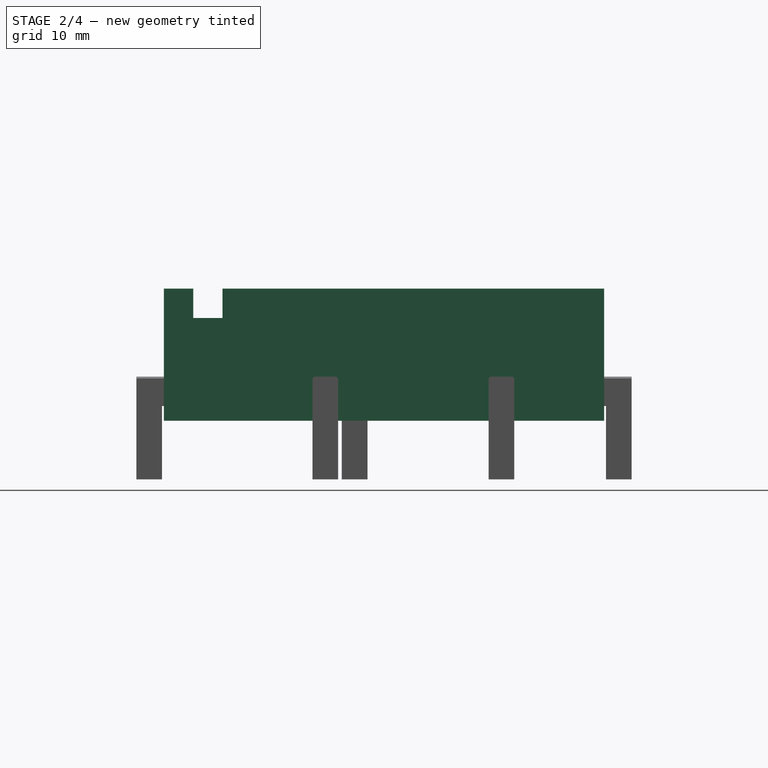
[diagram: stage 2 of 4 — right view after this stage's code; geometry added in this stage tinted green]
FEATURE [Sketcher::SketchObject] Sketch
  FullyConstrained = true
  MapMode = 5
  Support = -> [XY_Plane]
  sketch-geometry (4):
    g0: LineSegment StartX=0 StartY=60 StartZ=0 EndX=0 EndY=0 EndZ=0
    g1: LineSegment StartX=0 StartY=0 StartZ=0 EndX=60 EndY=0 EndZ=0
    g2: LineSegment StartX=60 StartY=0 StartZ=0 EndX=60 EndY=60 EndZ=0
    g3: LineSegment StartX=60 StartY=60 StartZ=0 EndX=0 EndY=60 EndZ=0
  constraints (11):
    c: Coincident(g0,g1)
    c: Coincident(g1,g2)
    c: Coincident(g2,g3)
    c: Coincident(g3,g0)
    c: Horizontal(g1)
    c: Horizontal(g3)
    c: Vertical(g0)
    c: Vertical(g2)
    c: DistanceX(g3,g3) = 60
    c: DistanceY(g2,g2) = 60
    c: Coincident(g-1,g0)
FEATURE [PartDesign::Pad] Pad
  Direction = (0,0,1)
  Length = 10
  Length2 = 10
  Profile = -> Sketch
  ReferenceAxis = -> Sketch [N_Axis]
  Type = 0
FEATURE [Sketcher::SketchObject] Sketch001
  FullyConstrained = false
  MapMode = 5
  Placement = pos=(0,0,10) rot=(0,0,1;0rad)
  Support = -> [Pad]
  sketch-geometry (74):
    g0: LineSegment StartX=12 StartY=64 StartZ=0 EndX=12 EndY=52 EndZ=0
    g1: LineSegment StartX=12 StartY=52 StartZ=0 EndX=4 EndY=52 EndZ=0
    g2: LineSegment StartX=4 StartY=52 StartZ=0 EndX=4 EndY=28 EndZ=0
    g3: LineSegment StartX=4 StartY=28 StartZ=0 EndX=-4 EndY=28 EndZ=0
    g4: LineSegment StartX=-4 StartY=28 StartZ=0 EndX=-4 EndY=24 EndZ=0
    g5: LineSegment StartX=-4 StartY=24 StartZ=0 EndX=12 EndY=24 EndZ=0
    g6: LineSegment StartX=12 StartY=24 StartZ=0 EndX=12 EndY=12 EndZ=0
    g7: LineSegment StartX=12 StartY=12 StartZ=0 EndX=4 EndY=12 EndZ=0
    g8: LineSegment StartX=4 StartY=12 StartZ=0 EndX=4 EndY=-4 EndZ=0
    g9: LineSegment StartX=4 StartY=-4 StartZ=0 EndX=8 EndY=-4 EndZ=0
    g10: LineSegment StartX=8 StartY=-4 StartZ=0 EndX=8 EndY=8 EndZ=0
    g11: LineSegment StartX=8 StartY=8 StartZ=0 EndX=20 EndY=8 EndZ=0
    g12: LineSegment StartX=20 StartY=8 StartZ=0 EndX=20 EndY=4 EndZ=0
    g13: LineSegment StartX=20 StartY=4 StartZ=0 EndX=36 EndY=4 EndZ=0
    g14: LineSegment StartX=36 StartY=4 StartZ=0 EndX=36 EndY=-4 EndZ=0
    g15: LineSegment StartX=36 StartY=-4 StartZ=0 EndX=40 EndY=-4 EndZ=0
    g16: LineSegment StartX=40 StartY=-4 StartZ=0 EndX=40 EndY=4 EndZ=0
    g17: LineSegment StartX=40 StartY=4 StartZ=0 EndX=48 EndY=4 EndZ=0
    g18: LineSegment StartX=48 StartY=4 StartZ=0 EndX=48 EndY=8 EndZ=0
    g19: LineSegment StartX=48 StartY=8 StartZ=0 EndX=32 EndY=8 EndZ=0
    g20: LineSegment StartX=32 StartY=8 StartZ=0 EndX=32 EndY=16 EndZ=0
    g21: LineSegment StartX=32 StartY=16 StartZ=0 EndX=40 EndY=16 EndZ=0
    g22: LineSegment StartX=40 StartY=16 StartZ=0 EndX=40 EndY=24 EndZ=0
    g23: LineSegment StartX=40 StartY=24 StartZ=0 EndX=52 EndY=24 EndZ=0
    g24: LineSegment StartX=52 StartY=24 StartZ=0 EndX=52 EndY=-4 EndZ=0
    g25: LineSegment StartX=52 StartY=-4 StartZ=0 EndX=56 EndY=-4 EndZ=0
    g26: LineSegment StartX=56 StartY=-4 StartZ=0 EndX=56 EndY=20 EndZ=0
    g27: LineSegment StartX=56 StartY=20 StartZ=0 EndX=64 EndY=20 EndZ=0
    g28: LineSegment StartX=64 StartY=20 StartZ=0 EndX=64 EndY=24 EndZ=0
    g29: LineSegment StartX=64 StartY=24 StartZ=0 EndX=56 EndY=24 EndZ=0
    g30: LineSegment StartX=56 StartY=24 StartZ=0 EndX=56 EndY=28 EndZ=0
    g31: LineSegment StartX=56 StartY=28 StartZ=0 EndX=48 EndY=28 EndZ=0
    g32: LineSegment StartX=48 StartY=28 StartZ=0 EndX=48 EndY=40 EndZ=0
    g33: LineSegment StartX=48 StartY=40 StartZ=0 EndX=56 EndY=40 EndZ=0
    g34: LineSegment StartX=56 StartY=40 StartZ=0 EndX=56 EndY=44 EndZ=0
    g35: LineSegment StartX=56 StartY=44 StartZ=0 EndX=64 EndY=44 EndZ=0
    g36: LineSegment StartX=64 StartY=44 StartZ=0 EndX=64 EndY=48 EndZ=0
    g37: LineSegment StartX=64 StartY=48 StartZ=0 EndX=52 EndY=48 EndZ=0
    g38: LineSegment StartX=52 StartY=48 StartZ=0 EndX=52 EndY=44 EndZ=0
    g39: LineSegment StartX=52 StartY=44 StartZ=0 EndX=48 EndY=44 EndZ=0
    g40: LineSegment StartX=48 StartY=44 StartZ=0 EndX=48 EndY=64 EndZ=0
    g41: LineSegment StartX=48 StartY=64 StartZ=0 EndX=44 EndY=64 EndZ=0
    g42: LineSegment StartX=44 StartY=64 StartZ=0 EndX=44 EndY=48 EndZ=0
    g43: LineSegment StartX=44 StartY=48 StartZ=0 EndX=32 EndY=48 EndZ=0
    g44: LineSegment StartX=32 StartY=48 StartZ=0 EndX=32 EndY=56 EndZ=0
    g45: LineSegment StartX=32 StartY=56 StartZ=0 EndX=16 EndY=56 EndZ=0
    g46: LineSegment StartX=16 StartY=56 StartZ=0 EndX=16 EndY=64 EndZ=0
    g47: LineSegment StartX=16 StartY=64 StartZ=0 EndX=12 EndY=64 EndZ=0
    g48: LineSegment StartX=16 StartY=52 StartZ=0 EndX=16 EndY=48 EndZ=0
    g49: LineSegment StartX=16 StartY=48 StartZ=0 EndX=8 EndY=48 EndZ=0
    g50: LineSegment StartX=8 StartY=48 StartZ=0 EndX=8 EndY=40 EndZ=0
    g51: LineSegment StartX=8 StartY=40 StartZ=0 EndX=24 EndY=40 EndZ=0
    g52: LineSegment StartX=24 StartY=40 StartZ=0 EndX=24 EndY=8 EndZ=0
    g53: LineSegment StartX=24 StartY=8 StartZ=0 EndX=28 EndY=8 EndZ=0
    g54: LineSegment StartX=28 StartY=8 StartZ=0 EndX=28 EndY=20 EndZ=0
    g55: LineSegment StartX=28 StartY=20 StartZ=0 EndX=36 EndY=20 EndZ=0
    g56: LineSegment StartX=36 StartY=20 StartZ=0 EndX=36 EndY=24 EndZ=0
    g57: LineSegment StartX=36 StartY=24 StartZ=0 EndX=32 EndY=24 EndZ=0
    g58: LineSegment StartX=28 StartY=52 StartZ=0 EndX=16 EndY=52 EndZ=0
    g59: LineSegment StartX=32 StartY=44 StartZ=0 EndX=44 EndY=44 EndZ=0
    g60: LineSegment StartX=44 StartY=44 StartZ=0 EndX=44 EndY=28 EndZ=0
    g61: LineSegment StartX=44 StartY=28 StartZ=0 EndX=36 EndY=28 EndZ=0
    g62: LineSegment StartX=36 StartY=28 StartZ=0 EndX=36 EndY=40 EndZ=0
    g63: LineSegment StartX=36 StartY=40 StartZ=0 EndX=32 EndY=40 EndZ=0
    g64: LineSegment StartX=32 StartY=40 StartZ=0 EndX=32 EndY=44 EndZ=0
    g65: LineSegment StartX=32 StartY=24 StartZ=0 EndX=32 EndY=36 EndZ=0
    g66: LineSegment StartX=32 StartY=36 StartZ=0 EndX=28 EndY=36 EndZ=0
    g67: LineSegment StartX=28 StartY=36 StartZ=0 EndX=28 EndY=52 EndZ=0
    g68: LineSegment StartX=8 StartY=36 StartZ=0 EndX=20 EndY=36 EndZ=0
    g69: LineSegment StartX=20 StartY=36 StartZ=0 EndX=20 EndY=12 EndZ=0
    g70: LineSegment StartX=20 StartY=12 StartZ=0 EndX=16 EndY=12 EndZ=0
    g71: LineSegment StartX=16 StartY=12 StartZ=0 EndX=16 EndY=28 EndZ=0
    g72: LineSegment StartX=16 StartY=28 StartZ=0 EndX=8 EndY=28 EndZ=0
    g73: LineSegment StartX=8 StartY=28 StartZ=0 EndX=8 EndY=36 EndZ=0
  constraints (148):
    c: Vertical(g0)
    c: Coincident(g0,g1)
    c: Horizontal(g1)
    c: Coincident(g1,g2)
    c: Vertical(g2)
    c: Coincident(g2,g3)
    c: Horizontal(g3)
    c: Coincident(g3,g4)
    c: Vertical(g4)
    c: Coincident(g4,g5)
    c: Horizontal(g5)
    c: Coincident(g5,g6)
    c: Vertical(g6)
    c: Coincident(g6,g7)
    c: Horizontal(g7)
    c: Coincident(g7,g8)
    c: Vertical(g8)
    c: Coincident(g8,g9)
    c: Horizontal(g9)
    c: Coincident(g9,g10)
    c: Vertical(g10)
    c: Coincident(g10,g11)
    c: Horizontal(g11)
    c: Coincident(g11,g12)
    c: Vertical(g12)
    c: Coincident(g12,g13)
    c: Horizontal(g13)
    c: Coincident(g13,g14)
    c: Vertical(g14)
    c: Coincident(g14,g15)
    c: Horizontal(g15)
    c: Coincident(g15,g16)
    c: Vertical(g16)
    c: Coincident(g16,g17)
    c: Horizontal(g17)
    c: Coincident(g17,g18)
    c: Vertical(g18)
    c: Coincident(g18,g19)
    c: Horizontal(g19)
    c: Coincident(g19,g20)
    c: Vertical(g20)
    c: Coincident(g20,g21)
    c: Horizontal(g21)
    c: Coincident(g21,g22)
    c: Vertical(g22)
    c: Coincident(g22,g23)
    c: Horizontal(g23)
    c: Coincident(g23,g24)
    c: Vertical(g24)
    c: Coincident(g24,g25)
    c: Horizontal(g25)
    c: Coincident(g25,g26)
    c: Vertical(g26)
    c: Coincident(g26,g27)
    c: Horizontal(g27)
    c: Coincident(g27,g28)
    c: Vertical(g28)
    c: Coincident(g28,g29)
    c: Horizontal(g29)
    c: Coincident(g29,g30)
    c: Vertical(g30)
    c: Coincident(g30,g31)
    c: Horizontal(g31)
    c: Coincident(g31,g32)
    c: Vertical(g32)
    c: Coincident(g32,g33)
    c: Horizontal(g33)
    c: Coincident(g33,g34)
    c: Vertical(g34)
    c: Coincident(g34,g35)
    c: Horizontal(g35)
    c: Coincident(g35,g36)
    c: Vertical(g36)
    c: Coincident(g36,g37)
    c: Horizontal(g37)
    c: Coincident(g37,g38)
    c: Vertical(g38)
    c: Coincident(g38,g39)
    c: Horizontal(g39)
    c: Coincident(g39,g40)
    c: Vertical(g40)
    c: Coincident(g40,g41)
    c: Horizontal(g41)
    c: Coincident(g41,g42)
    c: Vertical(g42)
    c: Coincident(g42,g43)
    c: Horizontal(g43)
    c: Coincident(g43,g44)
    c: Vertical(g44)
    c: Coincident(g44,g45)
    c: Horizontal(g45)
    c: Coincident(g45,g46)
    c: Vertical(g46)
    c: Coincident(g46,g47)
    c: Coincident(g47,g0)
    c: Horizontal(g47)
    c: Vertical(g48)
    c: Coincident(g48,g49)
    c: Horizontal(g49)
    c: Coincident(g49,g50)
    c: Vertical(g50)
    c: Coincident(g50,g51)
    c: Horizontal(g51)
    c: Coincident(g51,g52)
    c: Vertical(g52)
    c: Coincident(g52,g53)
    c: Horizontal(g53)
    c: Coincident(g53,g54)
    c: Vertical(g54)
    c: Coincident(g54,g55)
    c: Horizontal(g55)
    c: Coincident(g55,g56)
    c: Vertical(g56)
    c: Coincident(g56,g57)
    c: Horizontal(g57)
    c: Coincident(g58,g48)
    c: Horizontal(g58)
    c: Horizontal(g59)
    c: Coincident(g59,g60)
    c: Vertical(g60)
    c: Coincident(g60,g61)
    c: Horizontal(g61)
    c: Coincident(g61,g62)
    c: Vertical(g62)
    c: Coincident(g62,g63)
    c: Horizontal(g63)
    c: Coincident(g63,g64)
    c: Coincident(g64,g59)
    c: Vertical(g64)
    c: Coincident(g57,g65)
    c: Vertical(g65)
    c: Coincident(g65,g66)
    c: Horizontal(g66)
    c: Coincident(g66,g67)
    c: Coincident(g67,g58)
    c: Vertical(g67)
    c: Horizontal(g68)
    c: Coincident(g68,g69)
    c: Vertical(g69)
    c: Coincident(g69,g70)
    c: Horizontal(g70)
    c: Coincident(g70,g71)
    c: Vertical(g71)
    c: Coincident(g71,g72)
    c: Horizontal(g72)
    c: Coincident(g72,g73)
    c: Coincident(g73,g68)
    c: Vertical(g73)
FEATURE [Sketcher::SketchObject] Sketch002
  FullyConstrained = false
  MapMode = 5
  Placement = pos=(0,0,10) rot=(0,0,1;0rad)
  Support = -> [Pad]
  sketch-geometry (81):
    g0: LineSegment StartX=12 StartY=48 StartZ=0 EndX=12 EndY=44 EndZ=0
    g1: LineSegment StartX=12 StartY=44 StartZ=0 EndX=16 EndY=44 EndZ=0
    g2: LineSegment StartX=16 StartY=44 StartZ=0 EndX=16 EndY=40 EndZ=0
    g3: LineSegment StartX=16 StartY=40 StartZ=0 EndX=28 EndY=40 EndZ=0
    g4: LineSegment StartX=28 StartY=40 StartZ=0 EndX=28 EndY=52 EndZ=0
    g5: LineSegment StartX=28 StartY=52 StartZ=0 EndX=16 EndY=52 EndZ=0
    g6: LineSegment StartX=16 StartY=52 StartZ=0 EndX=16 EndY=48 EndZ=0
    g7: LineSegment StartX=16 StartY=48 StartZ=0 EndX=12 EndY=48 EndZ=0
    g8: LineSegment StartX=36 StartY=36 StartZ=0 EndX=40 EndY=36 EndZ=0
    g9: LineSegment StartX=40 StartY=36 StartZ=0 EndX=40 EndY=40 EndZ=0
    g10: LineSegment StartX=40 StartY=40 StartZ=0 EndX=44 EndY=40 EndZ=0
    g11: LineSegment StartX=44 StartY=40 StartZ=0 EndX=44 EndY=28 EndZ=0
    g12: LineSegment StartX=44 StartY=28 StartZ=0 EndX=36 EndY=28 EndZ=0
    g13: LineSegment StartX=36 StartY=28 StartZ=0 EndX=36 EndY=36 EndZ=0
    g14: LineSegment StartX=24 StartY=28 StartZ=0 EndX=32 EndY=28 EndZ=0
    g15: LineSegment StartX=32 StartY=28 StartZ=0 EndX=32 EndY=20 EndZ=0
    g16: LineSegment StartX=32 StartY=20 StartZ=0 EndX=28 EndY=20 EndZ=0
    g17: LineSegment StartX=28 StartY=20 StartZ=0 EndX=28 EndY=12 EndZ=0
    g18: LineSegment StartX=28 StartY=12 StartZ=0 EndX=24 EndY=12 EndZ=0
    g19: LineSegment StartX=24 StartY=12 StartZ=0 EndX=24 EndY=28 EndZ=0
    g20: LineSegment StartX=4 StartY=24 StartZ=0 EndX=4 EndY=16 EndZ=0
    g21: LineSegment StartX=4 StartY=16 StartZ=0 EndX=8 EndY=16 EndZ=0
    g22: LineSegment StartX=8 StartY=16 StartZ=0 EndX=8 EndY=12 EndZ=0
    g23: LineSegment StartX=8 StartY=12 StartZ=0 EndX=12 EndY=12 EndZ=0
    g24: LineSegment StartX=12 StartY=12 StartZ=0 EndX=12 EndY=24 EndZ=0
    g25: LineSegment StartX=12 StartY=24 StartZ=0 EndX=4 EndY=24 EndZ=0
    g26: LineSegment StartX=36 StartY=16 StartZ=0 EndX=44 EndY=16 EndZ=0
    g27: LineSegment StartX=44 StartY=16 StartZ=0 EndX=44 EndY=20 EndZ=0
    g28: LineSegment StartX=44 StartY=20 StartZ=0 EndX=48 EndY=20 EndZ=0
    g29: LineSegment StartX=48 StartY=20 StartZ=0 EndX=48 EndY=24 EndZ=0
    g30: LineSegment StartX=48 StartY=24 StartZ=0 EndX=52 EndY=24 EndZ=0
    g31: LineSegment StartX=52 StartY=24 StartZ=0 EndX=52 EndY=8 EndZ=0
    g32: LineSegment StartX=52 StartY=8 StartZ=0 EndX=36 EndY=8 EndZ=0
    g33: LineSegment StartX=36 StartY=8 StartZ=0 EndX=36 EndY=16 EndZ=0
    g34: LineSegment StartX=48 StartY=56 StartZ=0 EndX=56 EndY=56 EndZ=0
    g35: LineSegment StartX=56 StartY=56 StartZ=0 EndX=56 EndY=48 EndZ=0
    g36: LineSegment StartX=56 StartY=48 StartZ=0 EndX=52 EndY=48 EndZ=0
    g37: LineSegment StartX=52 StartY=48 StartZ=0 EndX=52 EndY=44 EndZ=0
    g38: LineSegment StartX=52 StartY=44 StartZ=0 EndX=48 EndY=44 EndZ=0
    g39: LineSegment StartX=48 StartY=44 StartZ=0 EndX=48 EndY=56 EndZ=0
    g40: LineSegment StartX=0 StartY=36 StartZ=0 EndX=4 EndY=36 EndZ=0
    g41: LineSegment StartX=4 StartY=36 StartZ=0 EndX=4 EndY=48 EndZ=0
    g42: LineSegment StartX=4 StartY=48 StartZ=0 EndX=0 EndY=48 EndZ=0
    g43: LineSegment StartX=0 StartY=48 StartZ=0 EndX=0 EndY=36 EndZ=0
    g44: LineSegment StartX=8 StartY=56 StartZ=0 EndX=0 EndY=56 EndZ=0
    g45: LineSegment StartX=0 StartY=56 StartZ=0 EndX=0 EndY=60 EndZ=0
    g46: LineSegment StartX=0 StartY=60 StartZ=0 EndX=12 EndY=60 EndZ=0
    g47: LineSegment StartX=12 StartY=60 StartZ=0 EndX=12 EndY=56 EndZ=0
    g48: LineSegment StartX=12 StartY=56 StartZ=0 EndX=8 EndY=56 EndZ=0
    g49: LineSegment StartX=40 StartY=48 StartZ=0 EndX=40 EndY=60 EndZ=0
    g50: LineSegment StartX=40 StartY=60 StartZ=0 EndX=28 EndY=60 EndZ=0
    g51: LineSegment StartX=28 StartY=60 StartZ=0 EndX=28 EndY=56 EndZ=0
    g52: LineSegment StartX=28 StartY=56 StartZ=0 EndX=36 EndY=56 EndZ=0
    g53: LineSegment StartX=36 StartY=56 StartZ=0 EndX=36 EndY=48 EndZ=0
    g54: LineSegment StartX=36 StartY=48 StartZ=0 EndX=40 EndY=48 EndZ=0
    g55: LineSegment StartX=8 StartY=4 StartZ=0 EndX=12 EndY=4 EndZ=0
    g56: LineSegment StartX=12 StartY=4 StartZ=0 EndX=12 EndY=8 EndZ=0
    g57: LineSegment StartX=12 StartY=8 StartZ=0 EndX=16 EndY=8 EndZ=0
    g58: LineSegment StartX=16 StartY=8 StartZ=0 EndX=16 EndY=4 EndZ=0
    g59: LineSegment StartX=16 StartY=4 StartZ=0 EndX=24 EndY=4 EndZ=0
    g60: LineSegment StartX=24 StartY=4 StartZ=0 EndX=24 EndY=0 EndZ=0
    g61: LineSegment StartX=24 StartY=0 StartZ=0 EndX=8 EndY=0 EndZ=0
    g62: LineSegment StartX=8 StartY=0 StartZ=0 EndX=8 EndY=4 EndZ=0
    g63: LineSegment StartX=52 StartY=40 StartZ=0 EndX=52 EndY=32 EndZ=0
    g64: LineSegment StartX=52 StartY=32 StartZ=0 EndX=56 EndY=32 EndZ=0
    g65: LineSegment StartX=56 StartY=32 StartZ=0 EndX=56 EndY=24 EndZ=0
    g66: LineSegment StartX=56 StartY=24 StartZ=0 EndX=59.864 EndY=24 EndZ=0
    g67: LineSegment StartX=59.864 StartY=24 StartZ=0 EndX=59.864 EndY=40 EndZ=0
    g68: LineSegment StartX=59.864 StartY=40 StartZ=0 EndX=52 EndY=40 EndZ=0
    g69: LineSegment StartX=56 StartY=4 StartZ=0 EndX=60 EndY=4 EndZ=0
    g70: LineSegment StartX=60 StartY=4 StartZ=0 EndX=60 EndY=0 EndZ=0
    g71: LineSegment StartX=60 StartY=0 StartZ=0 EndX=56 EndY=0 EndZ=0
    g72: LineSegment StartX=56 StartY=0 StartZ=0 EndX=56 EndY=4 EndZ=0
    g73: LineSegment StartX=8 StartY=36 StartZ=0 EndX=16 EndY=36 EndZ=0
    g74: LineSegment StartX=16 StartY=36 StartZ=0 EndX=16 EndY=32 EndZ=0
    g75: LineSegment StartX=16 StartY=32 StartZ=0 EndX=8 EndY=32 EndZ=0
    g76: LineSegment StartX=8 StartY=32 StartZ=0 EndX=8 EndY=36 EndZ=0
    g77: LineSegment StartX=16 StartY=16 StartZ=0 EndX=20 EndY=16 EndZ=0
    g78: LineSegment StartX=20 StartY=16 StartZ=0 EndX=20 EndY=12 EndZ=0
    g79: LineSegment StartX=20 StartY=12 StartZ=0 EndX=16 EndY=12 EndZ=0
    g80: LineSegment StartX=16 StartY=12 StartZ=0 EndX=16 EndY=16 EndZ=0
  constraints (162):
    c: Vertical(g0)
    c: Coincident(g0,g1)
    c: Horizontal(g1)
    c: Coincident(g1,g2)
    c: Vertical(g2)
    c: Coincident(g2,g3)
    c: Horizontal(g3)
    c: Coincident(g3,g4)
    c: Vertical(g4)
    c: Coincident(g4,g5)
    c: Horizontal(g5)
    c: Coincident(g5,g6)
    c: Vertical(g6)
    c: Coincident(g6,g7)
    c: Coincident(g7,g0)
    c: Horizontal(g7)
    c: Horizontal(g8)
    c: Coincident(g8,g9)
    c: Vertical(g9)
    c: Coincident(g9,g10)
    c: Horizontal(g10)
    c: Coincident(g10,g11)
    c: Vertical(g11)
    c: Coincident(g11,g12)
    c: Horizontal(g12)
    c: Coincident(g12,g13)
    c: PointOnObject(g13,g8)
    c: Vertical(g13)
    c: Horizontal(g14)
    c: Coincident(g14,g15)
    c: Vertical(g15)
    c: Coincident(g15,g16)
    c: Horizontal(g16)
    c: Coincident(g16,g17)
    c: Vertical(g17)
    c: Coincident(g17,g18)
    c: Horizontal(g18)
    c: Coincident(g18,g19)
    c: Coincident(g19,g14)
    c: Vertical(g19)
    c: Vertical(g20)
    c: Coincident(g20,g21)
    c: Horizontal(g21)
    c: Coincident(g21,g22)
    c: Vertical(g22)
    c: Coincident(g22,g23)
    c: Horizontal(g23)
    c: Coincident(g23,g24)
    c: Vertical(g24)
    c: Coincident(g24,g25)
    c: Coincident(g25,g20)
    c: Horizontal(g25)
    c: Horizontal(g26)
    c: Coincident(g26,g27)
    c: Vertical(g27)
    c: Coincident(g27,g28)
    c: Horizontal(g28)
    c: Coincident(g28,g29)
    c: Vertical(g29)
    c: Coincident(g29,g30)
    c: Horizontal(g30)
    c: Coincident(g30,g31)
    c: Vertical(g31)
    c: Coincident(g31,g32)
    c: Horizontal(g32)
    c: Coincident(g32,g33)
    c: Vertical(g33)
    c: Horizontal(g34)
    c: Coincident(g34,g35)
    c: Vertical(g35)
    c: Coincident(g35,g36)
    c: Horizontal(g36)
    c: Coincident(g36,g37)
    c: Vertical(g37)
    c: Coincident(g37,g38)
    c: Horizontal(g38)
    c: Coincident(g38,g39)
    c: PointOnObject(g39,g34)
    c: Vertical(g39)
    c: Horizontal(g40)
    c: Coincident(g40,g41)
    c: Vertical(g41)
    c: Coincident(g41,g42)
    c: Horizontal(g42)
    c: Coincident(g42,g43)
    c: Coincident(g43,g40)
    c: Vertical(g43)
    c: Horizontal(g44)
    c: Coincident(g44,g45)
    c: Vertical(g45)
    c: Coincident(g45,g46)
    c: Horizontal(g46)
    c: Coincident(g46,g47)
    c: Vertical(g47)
    c: Coincident(g47,g48)
    c: Coincident(g48,g44)
    c: Horizontal(g48)
    c: Vertical(g49)
    c: Coincident(g49,g50)
    c: Horizontal(g50)
    c: Coincident(g50,g51)
    c: Vertical(g51)
    c: Coincident(g51,g52)
    c: Horizontal(g52)
    c: Coincident(g52,g53)
    c: Vertical(g53)
    c: Coincident(g53,g54)
    c: Coincident(g54,g49)
    c: Horizontal(g54)
    c: Horizontal(g55)
    c: Coincident(g55,g56)
    c: Vertical(g56)
    c: Coincident(g56,g57)
    c: Horizontal(g57)
    c: Coincident(g57,g58)
    c: Vertical(g58)
    c: Coincident(g58,g59)
    c: Horizontal(g59)
    c: Coincident(g59,g60)
    c: Vertical(g60)
    c: Coincident(g60,g61)
    c: Horizontal(g61)
    c: Coincident(g61,g62)
    c: Vertical(g62)
    c: Coincident(g55,g62)
    c: Vertical(g63)
    c: Coincident(g63,g64)
    c: Horizontal(g64)
    c: Coincident(g64,g65)
    c: Vertical(g65)
    c: Coincident(g65,g66)
    c: Horizontal(g66)
    c: Coincident(g66,g67)
    c: Vertical(g67)
    c: Coincident(g67,g68)
    c: Horizontal(g68)
    c: Coincident(g68,g63)
    c: Coincident(g69,g70)
    c: Coincident(g70,g71)
    c: Coincident(g71,g72)
    c: Coincident(g72,g69)
    c: Horizontal(g69)
    c: Horizontal(g71)
    c: Vertical(g70)
    c: Vertical(g72)
    c: PointOnObject(g70,g-1)
    c: Horizontal(g73)
    c: Coincident(g73,g74)
    c: Vertical(g74)
    c: Coincident(g74,g75)
    c: Horizontal(g75)
    c: Coincident(g75,g76)
    c: Coincident(g76,g73)
    c: Vertical(g76)
    c: Horizontal(g77)
    c: Coincident(g77,g78)
    c: Vertical(g78)
    c: Coincident(g78,g79)
    c: Horizontal(g79)
    c: Coincident(g79,g80)
    c: Coincident(g80,g77)
    c: Vertical(g80)
FEATURE [PartDesign::Pad] Pad002
  BaseFeature = -> Pad
  Direction = (0,0,1)
  Length = 4
  Length2 = 10
  Profile = -> Sketch002
  ReferenceAxis = -> Sketch002 [N_Axis]
  Type = 0
FEATURE [Sketcher::SketchObject] Sketch003
  FullyConstrained = false
  MapMode = 5
  Placement = pos=(0,0,14) rot=(0,0,1;0rad)
  Support = -> [Pad002]
  sketch-geometry (60):
    g0: LineSegment StartX=24 StartY=52 StartZ=0 EndX=24 EndY=44 EndZ=0
    g1: LineSegment StartX=24 StartY=44 StartZ=0 EndX=20 EndY=44 EndZ=0
    g2: LineSegment StartX=20 StartY=44 StartZ=0 EndX=20 EndY=40 EndZ=0
    g3: LineSegment StartX=20 StartY=40 StartZ=0 EndX=16 EndY=40 EndZ=0
    g4: LineSegment StartX=16 StartY=40 StartZ=0 EndX=16 EndY=52 EndZ=0
    g5: LineSegment StartX=16 StartY=52 StartZ=0 EndX=24 EndY=52 EndZ=0
    g6: LineSegment StartX=48 StartY=56 StartZ=0 EndX=52 EndY=56 EndZ=0
    g7: LineSegment StartX=52 StartY=56 StartZ=0 EndX=52 EndY=52 EndZ=0
    g8: LineSegment StartX=52 StartY=52 StartZ=0 EndX=56 EndY=52 EndZ=0
    g9: LineSegment StartX=56 StartY=52 StartZ=0 EndX=56 EndY=48 EndZ=0
    g10: LineSegment StartX=56 StartY=48 StartZ=0 EndX=48 EndY=48 EndZ=0
    g11: LineSegment StartX=48 StartY=48 StartZ=0 EndX=48 EndY=56 EndZ=0
    g12: LineSegment StartX=36 StartY=16 StartZ=0 EndX=36 EndY=12 EndZ=0
    g13: LineSegment StartX=36 StartY=12 StartZ=0 EndX=40 EndY=12 EndZ=0
    g14: LineSegment StartX=40 StartY=12 StartZ=0 EndX=40 EndY=8 EndZ=0
    g15: LineSegment StartX=40 StartY=8 StartZ=0 EndX=48 EndY=8 EndZ=0
    g16: LineSegment StartX=48 StartY=8 StartZ=0 EndX=48 EndY=16 EndZ=0
    g17: LineSegment StartX=48 StartY=16 StartZ=0 EndX=52 EndY=16 EndZ=0
    g18: LineSegment StartX=52 StartY=16 StartZ=0 EndX=52 EndY=20 EndZ=0
    g19: LineSegment StartX=52 StartY=20 StartZ=0 EndX=44 EndY=20 EndZ=0
    g20: LineSegment StartX=44 StartY=20 StartZ=0 EndX=44 EndY=16 EndZ=0
    g21: LineSegment StartX=44 StartY=16 StartZ=0 EndX=36 EndY=16 EndZ=0
    g22: LineSegment StartX=4 StartY=24 StartZ=0 EndX=4 EndY=20 EndZ=0
    g23: LineSegment StartX=4 StartY=20 StartZ=0 EndX=8 EndY=20 EndZ=0
    g24: LineSegment StartX=8 StartY=20 StartZ=0 EndX=8 EndY=16 EndZ=0
    g25: LineSegment StartX=8 StartY=16 StartZ=0 EndX=12 EndY=16 EndZ=0
    g26: LineSegment StartX=12 StartY=16 StartZ=0 EndX=12 EndY=24 EndZ=0
    g27: LineSegment StartX=12 StartY=24 StartZ=0 EndX=4 EndY=24 EndZ=0
    g28: LineSegment StartX=24 StartY=16 StartZ=0 EndX=28 EndY=16 EndZ=0
    g29: LineSegment StartX=28 StartY=16 StartZ=0 EndX=28 EndY=20 EndZ=0
    g30: LineSegment StartX=28 StartY=20 StartZ=0 EndX=32 EndY=20 EndZ=0
    g31: LineSegment StartX=32 StartY=20 StartZ=0 EndX=32 EndY=24 EndZ=0
    g32: LineSegment StartX=32 StartY=24 StartZ=0 EndX=28 EndY=24 EndZ=0
    g33: LineSegment StartX=28 StartY=24 StartZ=0 EndX=28 EndY=28 EndZ=0
    g34: LineSegment StartX=28 StartY=28 StartZ=0 EndX=24 EndY=28 EndZ=0
    g35: LineSegment StartX=24 StartY=28 StartZ=0 EndX=24 EndY=16 EndZ=0
    g36: LineSegment StartX=36 StartY=36 StartZ=0 EndX=44 EndY=36 EndZ=0
    g37: LineSegment StartX=44 StartY=36 StartZ=0 EndX=44 EndY=32 EndZ=0
    g38: LineSegment StartX=44 StartY=32 StartZ=0 EndX=36 EndY=32 EndZ=0
    g39: LineSegment StartX=36 StartY=32 StartZ=0 EndX=36 EndY=36 EndZ=0
    g40: LineSegment StartX=4 StartY=60 StartZ=0 EndX=4 EndY=56 EndZ=0
    g41: LineSegment StartX=4 StartY=56 StartZ=0 EndX=12 EndY=56 EndZ=0
    g42: LineSegment StartX=12 StartY=56 StartZ=0 EndX=12 EndY=60 EndZ=0
    g43: LineSegment StartX=12 StartY=60 StartZ=0 EndX=4 EndY=60 EndZ=0
    g44: LineSegment StartX=36 StartY=60 StartZ=0 EndX=36 EndY=52 EndZ=0
    g45: LineSegment StartX=36 StartY=52 StartZ=0 EndX=40 EndY=52 EndZ=0
    g46: LineSegment StartX=40 StartY=52 StartZ=0 EndX=40 EndY=60 EndZ=0
    g47: LineSegment StartX=40 StartY=60 StartZ=0 EndX=36 EndY=60 EndZ=0
    g48: LineSegment StartX=52 StartY=36 StartZ=0 EndX=56 EndY=36 EndZ=0
    g49: LineSegment StartX=56 StartY=36 StartZ=0 EndX=56 EndY=40 EndZ=0
    g50: LineSegment StartX=56 StartY=40 StartZ=0 EndX=60 EndY=40 EndZ=0
    g51: LineSegment StartX=60 StartY=40 StartZ=0 EndX=60 EndY=28 EndZ=0
    g52: LineSegment StartX=60 StartY=28 StartZ=0 EndX=56 EndY=28 EndZ=0
    g53: LineSegment StartX=56 StartY=28 StartZ=0 EndX=56 EndY=32 EndZ=0
    g54: LineSegment StartX=56 StartY=32 StartZ=0 EndX=52 EndY=32 EndZ=0
    g55: LineSegment StartX=52 StartY=32 StartZ=0 EndX=52 EndY=36 EndZ=0
    g56: LineSegment StartX=12 StartY=4 StartZ=0 EndX=12 EndY=0 EndZ=0
    g57: LineSegment StartX=12 StartY=0 StartZ=0 EndX=20 EndY=0 EndZ=0
    g58: LineSegment StartX=20 StartY=0 StartZ=0 EndX=20 EndY=4 EndZ=0
    g59: LineSegment StartX=20 StartY=4 StartZ=0 EndX=12 EndY=4 EndZ=0
  constraints (121):
    c: Vertical(g0)
    c: Coincident(g0,g1)
    c: Horizontal(g1)
    c: Coincident(g1,g2)
    c: Vertical(g2)
    c: Coincident(g2,g3)
    c: Horizontal(g3)
    c: Coincident(g3,g4)
    c: Vertical(g4)
    c: Coincident(g4,g5)
    c: Coincident(g5,g0)
    c: Horizontal(g5)
    c: Horizontal(g6)
    c: Coincident(g6,g7)
    c: Vertical(g7)
    c: Coincident(g7,g8)
    c: Horizontal(g8)
    c: Coincident(g8,g9)
    c: Vertical(g9)
    c: Coincident(g9,g10)
    c: Horizontal(g10)
    c: Coincident(g10,g11)
    c: Coincident(g11,g6)
    c: Vertical(g11)
    c: Vertical(g12)
    c: Coincident(g12,g13)
    c: Horizontal(g13)
    c: Coincident(g13,g14)
    c: Vertical(g14)
    c: Coincident(g14,g15)
    c: Horizontal(g15)
    c: Coincident(g15,g16)
    c: Vertical(g16)
    c: Coincident(g16,g17)
    c: Horizontal(g17)
    c: Coincident(g17,g18)
    c: Vertical(g18)
    c: Coincident(g18,g19)
    c: Horizontal(g19)
    c: Coincident(g19,g20)
    c: Vertical(g20)
    c: Coincident(g20,g21)
    c: PointOnObject(g21,g12)
    c: Horizontal(g21)
    c: Vertical(g22)
    c: Coincident(g22,g23)
    c: Horizontal(g23)
    c: Coincident(g23,g24)
    c: Vertical(g24)
    c: Coincident(g24,g25)
    c: Horizontal(g25)
    c: Coincident(g25,g26)
    c: Vertical(g26)
    c: Coincident(g26,g27)
    c: Coincident(g27,g22)
    c: Horizontal(g27)
    c: Horizontal(g28)
    c: Coincident(g28,g29)
    c: Vertical(g29)
    c: Coincident(g29,g30)
    c: Horizontal(g30)
    c: Coincident(g30,g31)
    c: Vertical(g31)
    c: Coincident(g31,g32)
    c: Horizontal(g32)
    c: Coincident(g32,g33)
    c: Vertical(g33)
    c: Coincident(g33,g34)
    c: Horizontal(g34)
    c: Coincident(g34,g35)
    c: Coincident(g35,g28)
    c: Vertical(g35)
    c: Horizontal(g36)
    c: Coincident(g36,g37)
    c: Vertical(g37)
    c: Coincident(g37,g38)
    c: Horizontal(g38)
    c: Coincident(g38,g39)
    c: Coincident(g39,g36)
    c: Vertical(g39)
    c: Vertical(g40)
    c: Coincident(g40,g41)
    c: Horizontal(g41)
    c: Coincident(g41,g42)
    c: Vertical(g42)
    c: Coincident(g42,g43)
    c: Coincident(g43,g40)
    c: Horizontal(g43)
    c: Vertical(g44)
    c: Coincident(g44,g45)
    c: Horizontal(g45)
    c: Coincident(g45,g46)
    c: Vertical(g46)
    c: Coincident(g46,g47)
    c: Coincident(g47,g44)
    c: Horizontal(g47)
    c: Horizontal(g48)
    c: Coincident(g48,g49)
    c: Vertical(g49)
    c: Coincident(g49,g50)
    c: Horizontal(g50)
    c: Coincident(g50,g51)
    c: Vertical(g51)
    c: Coincident(g51,g52)
    c: Horizontal(g52)
    c: Coincident(g52,g53)
    c: Vertical(g53)
    c: Coincident(g53,g54)
    c: Horizontal(g54)
    c: Coincident(g54,g55)
    c: Coincident(g55,g48)
    c: Vertical(g55)
    c: Vertical(g56)
    c: Coincident(g56,g57)
    c: PointOnObject(g57,g-1)
    c: Horizontal(g57)
    c: Coincident(g57,g58)
    c: Vertical(g58)
    c: Coincident(g58,g59)
    c: Coincident(g59,g56)
    c: Horizontal(g59)
FEATURE [PartDesign::Pad] Pad003
  BaseFeature = -> Pad002
  Direction = (0,0,1)
  Length = 4
  Length2 = 10
  Profile = -> Sketch003
  ReferenceAxis = -> Sketch003 [N_Axis]
  Type = 0
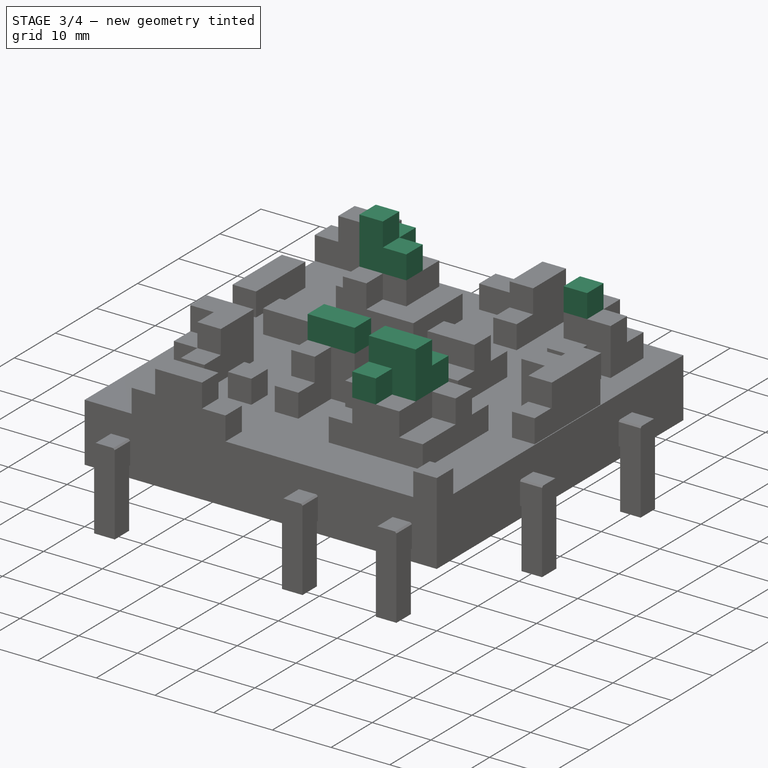
[diagram: stage 3 of 4 — iso view after this stage's code; geometry added in this stage tinted green]
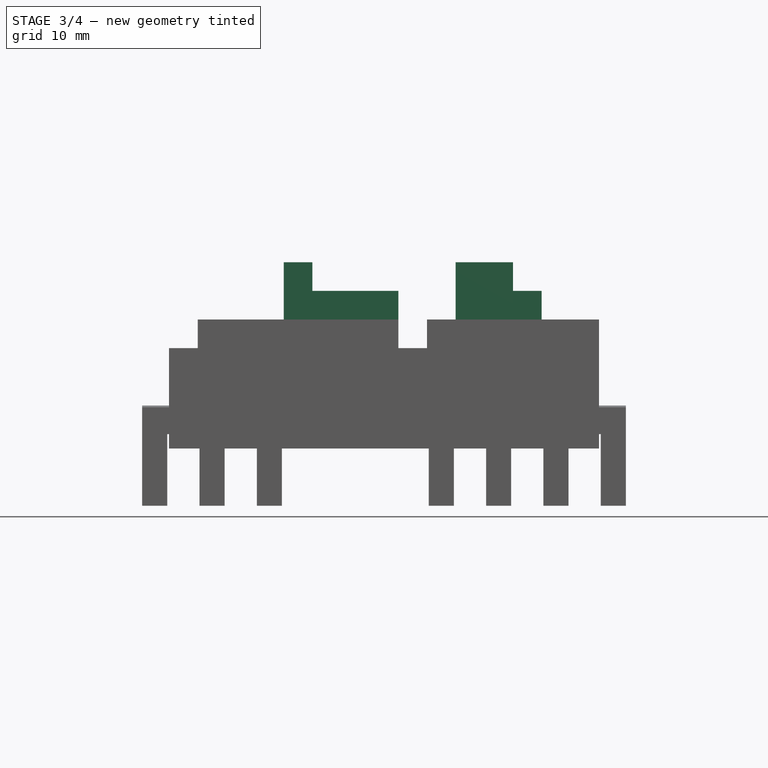
[diagram: stage 3 of 4 — front view after this stage's code; geometry added in this stage tinted green]
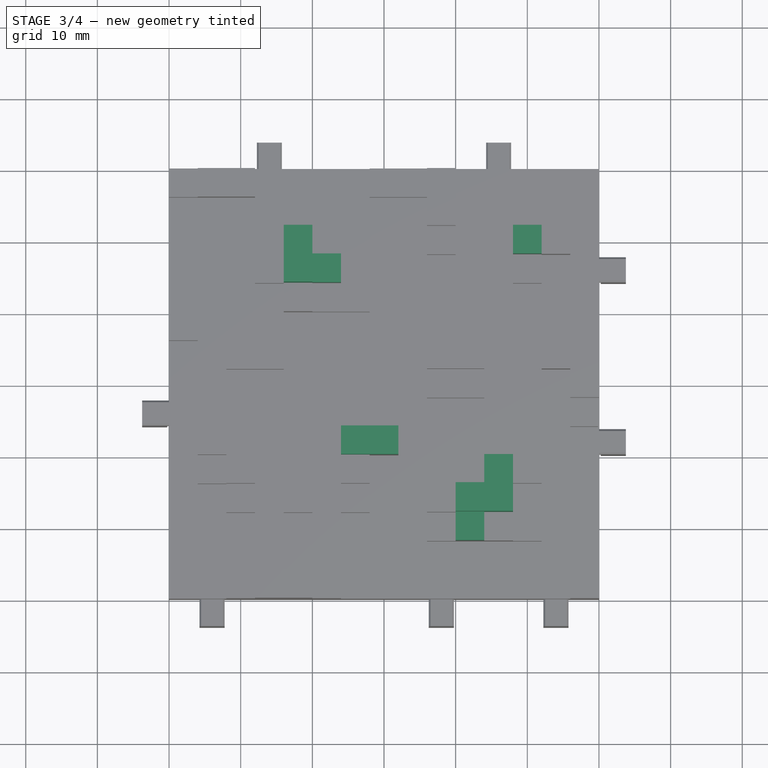
[diagram: stage 3 of 4 — top view after this stage's code; geometry added in this stage tinted green]
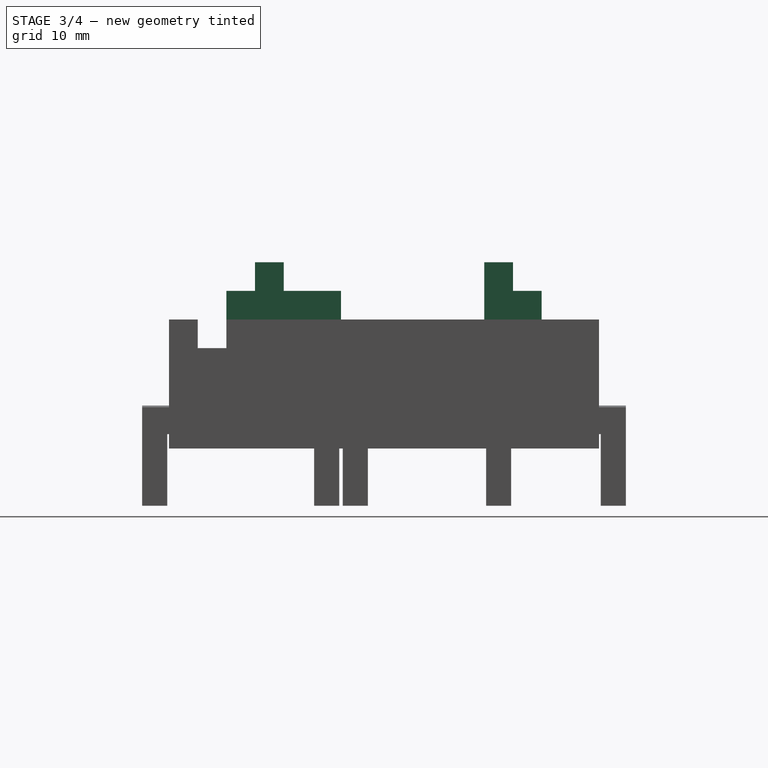
[diagram: stage 3 of 4 — right view after this stage's code; geometry added in this stage tinted green]
FEATURE [Sketcher::SketchObject] Sketch004
  FullyConstrained = false
  MapMode = 5
  Placement = pos=(0,0,18) rot=(0,0,1;0rad)
  Support = -> [Pad003]
  sketch-geometry (22):
    g0: LineSegment StartX=16 StartY=52 StartZ=0 EndX=16 EndY=44 EndZ=0
    g1: LineSegment StartX=16 StartY=44 StartZ=0 EndX=24 EndY=44 EndZ=0
    g2: LineSegment StartX=24 StartY=44 StartZ=0 EndX=24 EndY=48 EndZ=0
    g3: LineSegment StartX=24 StartY=48 StartZ=0 EndX=20 EndY=48 EndZ=0
    g4: LineSegment StartX=20 StartY=48 StartZ=0 EndX=20 EndY=52 EndZ=0
    g5: LineSegment StartX=20 StartY=52 StartZ=0 EndX=16 EndY=52 EndZ=0
    g6: LineSegment StartX=24 StartY=24 StartZ=0 EndX=32 EndY=24 EndZ=0
    g7: LineSegment StartX=32 StartY=24 StartZ=0 EndX=32 EndY=20 EndZ=0
    g8: LineSegment StartX=32 StartY=20 StartZ=0 EndX=24 EndY=20 EndZ=0
    g9: LineSegment StartX=24 StartY=20 StartZ=0 EndX=24 EndY=24 EndZ=0
    g10: LineSegment StartX=40 StartY=16 StartZ=0 EndX=40 EndY=8 EndZ=0
    g11: LineSegment StartX=40 StartY=8 StartZ=0 EndX=44 EndY=8 EndZ=0
    g12: LineSegment StartX=44 StartY=8 StartZ=0 EndX=44 EndY=12 EndZ=0
    g13: LineSegment StartX=44 StartY=12 StartZ=0 EndX=48 EndY=12 EndZ=0
    g14: LineSegment StartX=48 StartY=12 StartZ=0 EndX=48 EndY=20 EndZ=0
    g15: LineSegment StartX=48 StartY=20 StartZ=0 EndX=44 EndY=20 EndZ=0
    g16: LineSegment StartX=44 StartY=20 StartZ=0 EndX=44 EndY=16 EndZ=0
    g17: LineSegment StartX=44 StartY=16 StartZ=0 EndX=40 EndY=16 EndZ=0
    g18: LineSegment StartX=52 StartY=52 StartZ=0 EndX=52 EndY=48 EndZ=0
    g19: LineSegment StartX=52 StartY=48 StartZ=0 EndX=48 EndY=48 EndZ=0
    g20: LineSegment StartX=48 StartY=48 StartZ=0 EndX=48 EndY=52 EndZ=0
    g21: LineSegment StartX=48 StartY=52 StartZ=0 EndX=52 EndY=52 EndZ=0
  constraints (43):
    c: Vertical(g0)
    c: Coincident(g0,g1)
    c: Horizontal(g1)
    c: Coincident(g1,g2)
    c: Vertical(g2)
    c: Coincident(g2,g3)
    c: Horizontal(g3)
    c: Coincident(g3,g4)
    c: Vertical(g4)
    c: Coincident(g4,g5)
    c: PointOnObject(g5,g0)
    c: Horizontal(g5)
    c: Horizontal(g6)
    c: Coincident(g6,g7)
    c: Vertical(g7)
    c: Coincident(g7,g8)
    c: Horizontal(g8)
    c: Coincident(g8,g9)
    c: Coincident(g9,g6)
    c: Vertical(g9)
    c: Vertical(g10)
    c: Coincident(g10,g11)
    c: Horizontal(g11)
    c: Coincident(g11,g12)
    c: Vertical(g12)
    c: Coincident(g12,g13)
    c: Horizontal(g13)
    c: Coincident(g13,g14)
    c: Vertical(g14)
    c: Coincident(g14,g15)
    c: Horizontal(g15)
    c: Coincident(g15,g16)
    c: Vertical(g16)
    c: Coincident(g16,g17)
    c: Coincident(g17,g10)
    c: Horizontal(g17)
    c: Vertical(g18)
    c: Coincident(g18,g19)
    c: Horizontal(g19)
    c: Coincident(g19,g20)
    c: Vertical(g20)
    c: Coincident(g20,g21)
    c: Horizontal(g21)
FEATURE [PartDesign::Pad] Pad004
  BaseFeature = -> Pad003
  Direction = (0,0,1)
  Length = 4
  Length2 = 10
  Profile = -> Sketch004
  ReferenceAxis = -> Sketch004 [N_Axis]
  Type = 0
FEATURE [Sketcher::SketchObject] Sketch005
  FullyConstrained = false
  MapMode = 5
  Placement = pos=(0,0,22) rot=(0,0,1;0rad)
  Support = -> [Pad004]
  sketch-geometry (8):
    g0: LineSegment StartX=40 StartY=16 StartZ=0 EndX=48 EndY=16 EndZ=0
    g1: LineSegment StartX=48 StartY=16 StartZ=0 EndX=48 EndY=12 EndZ=0
    g2: LineSegment StartX=48 StartY=12 StartZ=0 EndX=40 EndY=12 EndZ=0
    g3: LineSegment StartX=40 StartY=12 StartZ=0 EndX=40 EndY=16 EndZ=0
    g4: LineSegment StartX=16 StartY=48 StartZ=0 EndX=20 EndY=48 EndZ=0
    g5: LineSegment StartX=20 StartY=48 StartZ=0 EndX=20 EndY=44 EndZ=0
    g6: LineSegment StartX=20 StartY=44 StartZ=0 EndX=16 EndY=44 EndZ=0
    g7: LineSegment StartX=16 StartY=44 StartZ=0 EndX=16 EndY=48 EndZ=0
  constraints (16):
    c: Coincident(g0,g1)
    c: Coincident(g1,g2)
    c: Coincident(g2,g3)
    c: Coincident(g3,g0)
    c: Horizontal(g0)
    c: Horizontal(g2)
    c: Vertical(g1)
    c: Vertical(g3)
    c: Coincident(g4,g5)
    c: Coincident(g5,g6)
    c: Coincident(g6,g7)
    c: Coincident(g7,g4)
    c: Horizontal(g4)
    c: Horizontal(g6)
    c: Vertical(g5)
    c: Vertical(g7)
FEATURE [PartDesign::Pad] Pad005
  BaseFeature = -> Pad004
  Direction = (0,0,1)
  Length = 4
  Length2 = 10
  Profile = -> Sketch005
  ReferenceAxis = -> Sketch005 [N_Axis]
  Type = 0
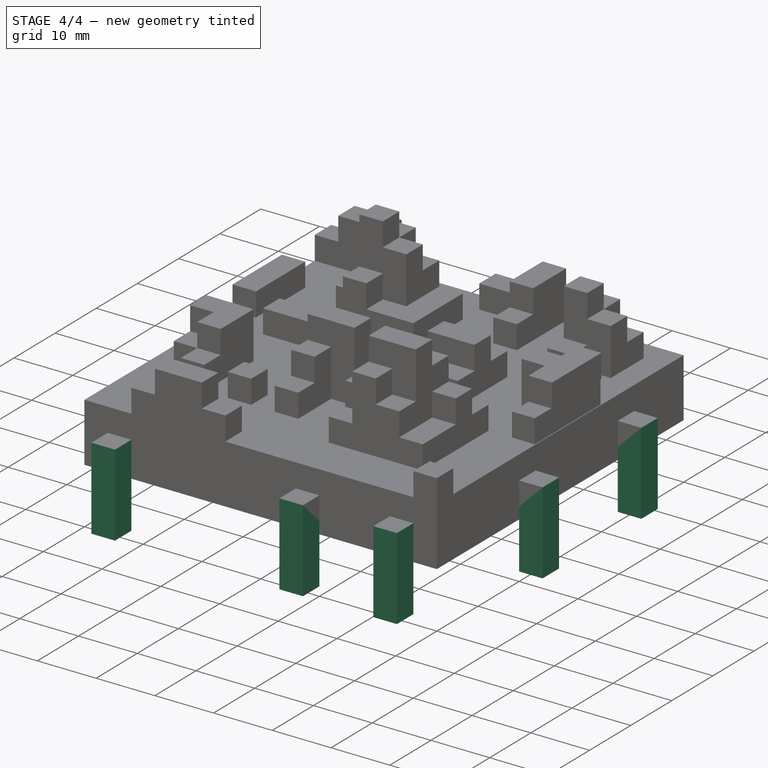
[diagram: stage 4 of 4 — iso view after this stage's code; geometry added in this stage tinted green]
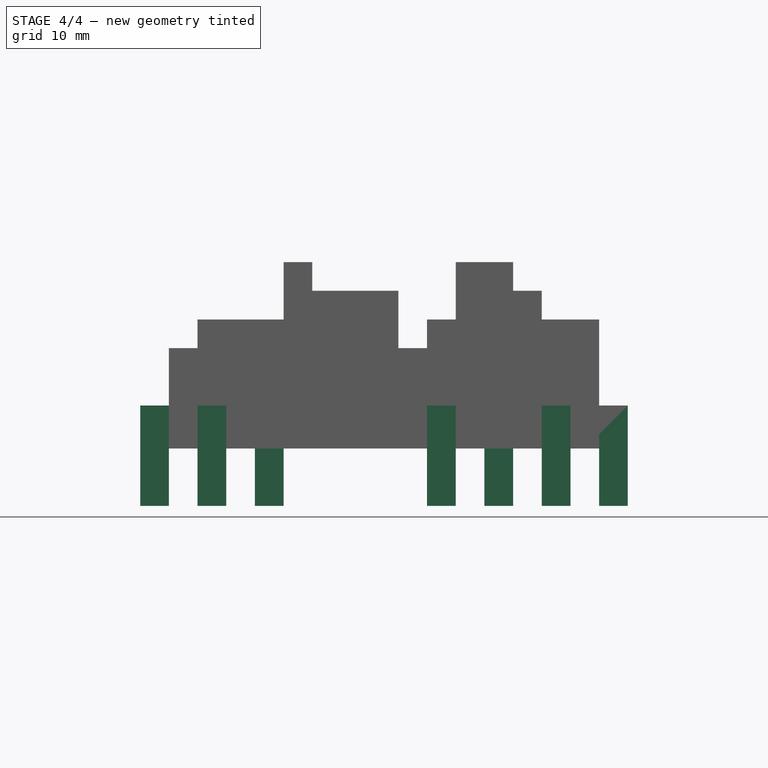
[diagram: stage 4 of 4 — front view after this stage's code; geometry added in this stage tinted green]
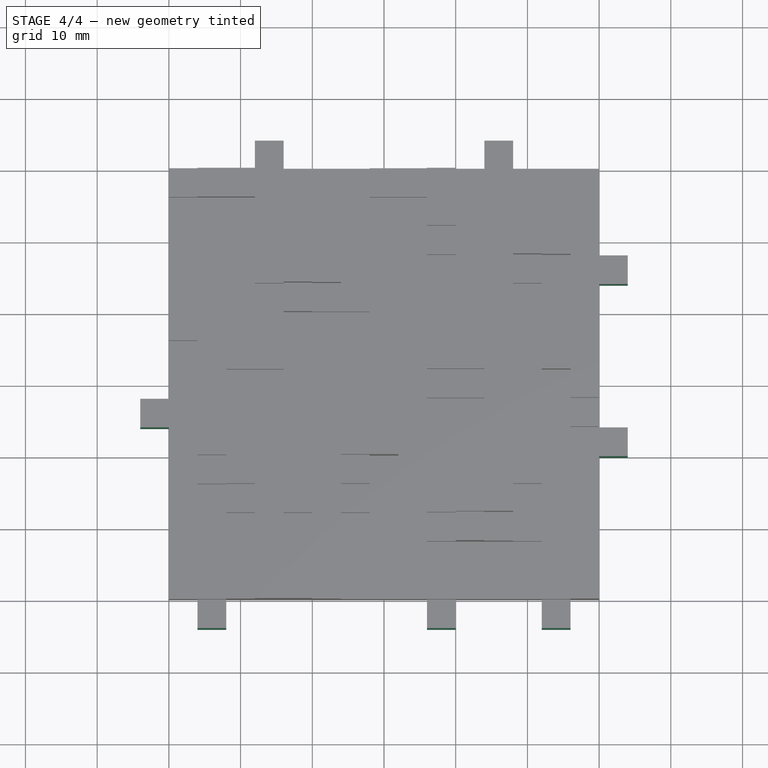
[diagram: stage 4 of 4 — top view after this stage's code; geometry added in this stage tinted green]
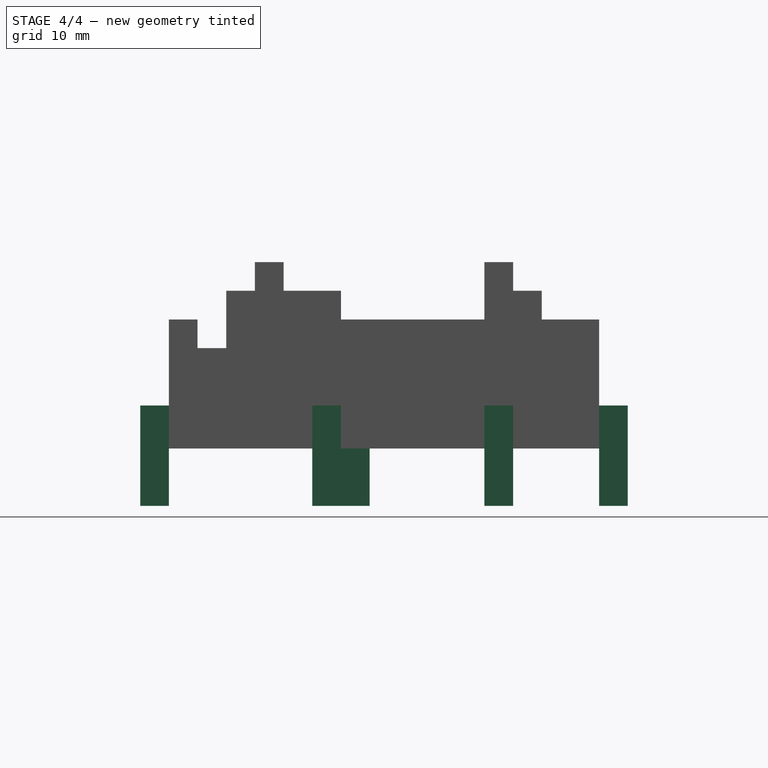
[diagram: stage 4 of 4 — right view after this stage's code; geometry added in this stage tinted green]
FEATURE [Sketcher::SketchObject] Sketch006
  AttachmentOffset = pos=(0,0,2) rot=(0,0,1;0rad)
  FullyConstrained = false
  MapMode = 2
  Placement = pos=(0,0,2) rot=(0,0,1;0rad)
  Support = -> [XY_Plane001]
  sketch-geometry (74):
    g0: LineSegment StartX=12 StartY=64 StartZ=0 EndX=12 EndY=52 EndZ=0
    g1: LineSegment StartX=12 StartY=52 StartZ=0 EndX=4 EndY=52 EndZ=0
    g2: LineSegment StartX=4 StartY=52 StartZ=0 EndX=4 EndY=28 EndZ=0
    g3: LineSegment StartX=4 StartY=28 StartZ=0 EndX=-4 EndY=28 EndZ=0
    g4: LineSegment StartX=-4 StartY=28 StartZ=0 EndX=-4 EndY=24 EndZ=0
    g5: LineSegment StartX=-4 StartY=24 StartZ=0 EndX=12 EndY=24 EndZ=0
    g6: LineSegment StartX=12 StartY=24 StartZ=0 EndX=12 EndY=12 EndZ=0
    g7: LineSegment StartX=12 StartY=12 StartZ=0 EndX=4 EndY=12 EndZ=0
    g8: LineSegment StartX=4 StartY=12 StartZ=0 EndX=4 EndY=-4 EndZ=0
    g9: LineSegment StartX=4 StartY=-4 StartZ=0 EndX=8 EndY=-4 EndZ=0
    g10: LineSegment StartX=8 StartY=-4 StartZ=0 EndX=8 EndY=8 EndZ=0
    g11: LineSegment StartX=8 StartY=8 StartZ=0 EndX=20 EndY=8 EndZ=0
    g12: LineSegment StartX=20 StartY=8 StartZ=0 EndX=20 EndY=4 EndZ=0
    g13: LineSegment StartX=20 StartY=4 StartZ=0 EndX=36 EndY=4 EndZ=0
    g14: LineSegment StartX=36 StartY=4 StartZ=0 EndX=36 EndY=-4 EndZ=0
    g15: LineSegment StartX=36 StartY=-4 StartZ=0 EndX=40 EndY=-4 EndZ=0
    g16: LineSegment StartX=40 StartY=-4 StartZ=0 EndX=40 EndY=4 EndZ=0
    g17: LineSegment StartX=40 StartY=4 StartZ=0 EndX=48 EndY=4 EndZ=0
    g18: LineSegment StartX=48 StartY=4 StartZ=0 EndX=48 EndY=8 EndZ=0
    g19: LineSegment StartX=48 StartY=8 StartZ=0 EndX=32 EndY=8 EndZ=0
    g20: LineSegment StartX=32 StartY=8 StartZ=0 EndX=32 EndY=16 EndZ=0
    g21: LineSegment StartX=32 StartY=16 StartZ=0 EndX=40 EndY=16 EndZ=0
    g22: LineSegment StartX=40 StartY=16 StartZ=0 EndX=40 EndY=24 EndZ=0
    g23: LineSegment StartX=40 StartY=24 StartZ=0 EndX=52 EndY=24 EndZ=0
    g24: LineSegment StartX=52 StartY=24 StartZ=0 EndX=52 EndY=-4 EndZ=0
    g25: LineSegment StartX=52 StartY=-4 StartZ=0 EndX=56 EndY=-4 EndZ=0
    g26: LineSegment StartX=56 StartY=-4 StartZ=0 EndX=56 EndY=20 EndZ=0
    g27: LineSegment StartX=56 StartY=20 StartZ=0 EndX=64 EndY=20 EndZ=0
    g28: LineSegment StartX=64 StartY=20 StartZ=0 EndX=64 EndY=24 EndZ=0
    g29: LineSegment StartX=64 StartY=24 StartZ=0 EndX=56 EndY=24 EndZ=0
    g30: LineSegment StartX=56 StartY=24 StartZ=0 EndX=56 EndY=28 EndZ=0
    g31: LineSegment StartX=56 StartY=28 StartZ=0 EndX=48 EndY=28 EndZ=0
    g32: LineSegment StartX=48 StartY=28 StartZ=0 EndX=48 EndY=40 EndZ=0
    g33: LineSegment StartX=48 StartY=40 StartZ=0 EndX=56 EndY=40 EndZ=0
    g34: LineSegment StartX=56 StartY=40 StartZ=0 EndX=56 EndY=44 EndZ=0
    g35: LineSegment StartX=56 StartY=44 StartZ=0 EndX=64 EndY=44 EndZ=0
    g36: LineSegment StartX=64 StartY=44 StartZ=0 EndX=64 EndY=48 EndZ=0
    g37: LineSegment StartX=64 StartY=48 StartZ=0 EndX=52 EndY=48 EndZ=0
    g38: LineSegment StartX=52 StartY=48 StartZ=0 EndX=52 EndY=44 EndZ=0
    g39: LineSegment StartX=52 StartY=44 StartZ=0 EndX=48 EndY=44 EndZ=0
    g40: LineSegment StartX=48 StartY=44 StartZ=0 EndX=48 EndY=64 EndZ=0
    g41: LineSegment StartX=48 StartY=64 StartZ=0 EndX=44 EndY=64 EndZ=0
    g42: LineSegment StartX=44 StartY=64 StartZ=0 EndX=44 EndY=48 EndZ=0
    g43: LineSegment StartX=44 StartY=48 StartZ=0 EndX=32 EndY=48 EndZ=0
    g44: LineSegment StartX=32 StartY=48 StartZ=0 EndX=32 EndY=56 EndZ=0
    g45: LineSegment StartX=32 StartY=56 StartZ=0 EndX=16 EndY=56 EndZ=0
    g46: LineSegment StartX=16 StartY=56 StartZ=0 EndX=16 EndY=64 EndZ=0
    g47: LineSegment StartX=16 StartY=64 StartZ=0 EndX=12 EndY=64 EndZ=0
    g48: LineSegment StartX=16 StartY=52 StartZ=0 EndX=16 EndY=48 EndZ=0
    g49: LineSegment StartX=16 StartY=48 StartZ=0 EndX=8 EndY=48 EndZ=0
    g50: LineSegment StartX=8 StartY=48 StartZ=0 EndX=8 EndY=40 EndZ=0
    g51: LineSegment StartX=8 StartY=40 StartZ=0 EndX=24 EndY=40 EndZ=0
    g52: LineSegment StartX=24 StartY=40 StartZ=0 EndX=24 EndY=8 EndZ=0
    g53: LineSegment StartX=24 StartY=8 StartZ=0 EndX=28 EndY=8 EndZ=0
    g54: LineSegment StartX=28 StartY=8 StartZ=0 EndX=28 EndY=20 EndZ=0
    g55: LineSegment StartX=28 StartY=20 StartZ=0 EndX=36 EndY=20 EndZ=0
    g56: LineSegment StartX=36 StartY=20 StartZ=0 EndX=36 EndY=24 EndZ=0
    g57: LineSegment StartX=36 StartY=24 StartZ=0 EndX=32 EndY=24 EndZ=0
    g58: LineSegment StartX=28 StartY=52 StartZ=0 EndX=16 EndY=52 EndZ=0
    g59: LineSegment StartX=32 StartY=44 StartZ=0 EndX=44 EndY=44 EndZ=0
    g60: LineSegment StartX=44 StartY=44 StartZ=0 EndX=44 EndY=28 EndZ=0
    g61: LineSegment StartX=44 StartY=28 StartZ=0 EndX=36 EndY=28 EndZ=0
    g62: LineSegment StartX=36 StartY=28 StartZ=0 EndX=36 EndY=40 EndZ=0
    g63: LineSegment StartX=36 StartY=40 StartZ=0 EndX=32 EndY=40 EndZ=0
    g64: LineSegment StartX=32 StartY=40 StartZ=0 EndX=32 EndY=44 EndZ=0
    g65: LineSegment StartX=32 StartY=24 StartZ=0 EndX=32 EndY=36 EndZ=0
    g66: LineSegment StartX=32 StartY=36 StartZ=0 EndX=28 EndY=36 EndZ=0
    g67: LineSegment StartX=28 StartY=36 StartZ=0 EndX=28 EndY=52 EndZ=0
    g68: LineSegment StartX=8 StartY=36 StartZ=0 EndX=20 EndY=36 EndZ=0
    g69: LineSegment StartX=20 StartY=36 StartZ=0 EndX=20 EndY=12 EndZ=0
    g70: LineSegment StartX=20 StartY=12 StartZ=0 EndX=16 EndY=12 EndZ=0
    g71: LineSegment StartX=16 StartY=12 StartZ=0 EndX=16 EndY=28 EndZ=0
    g72: LineSegment StartX=16 StartY=28 StartZ=0 EndX=8 EndY=28 EndZ=0
    g73: LineSegment StartX=8 StartY=28 StartZ=0 EndX=8 EndY=36 EndZ=0
  constraints (148):
    c: Vertical(g0)
    c: Coincident(g0,g1)
    c: Horizontal(g1)
    c: Coincident(g1,g2)
    c: Vertical(g2)
    c: Coincident(g2,g3)
    c: Horizontal(g3)
    c: Coincident(g3,g4)
    c: Vertical(g4)
    c: Coincident(g4,g5)
    c: Horizontal(g5)
    c: Coincident(g5,g6)
    c: Vertical(g6)
    c: Coincident(g6,g7)
    c: Horizontal(g7)
    c: Coincident(g7,g8)
    c: Vertical(g8)
    c: Coincident(g8,g9)
    c: Horizontal(g9)
    c: Coincident(g9,g10)
    c: Vertical(g10)
    c: Coincident(g10,g11)
    c: Horizontal(g11)
    c: Coincident(g11,g12)
    c: Vertical(g12)
    c: Coincident(g12,g13)
    c: Horizontal(g13)
    c: Coincident(g13,g14)
    c: Vertical(g14)
    c: Coincident(g14,g15)
    c: Horizontal(g15)
    c: Coincident(g15,g16)
    c: Vertical(g16)
    c: Coincident(g16,g17)
    c: Horizontal(g17)
    c: Coincident(g17,g18)
    c: Vertical(g18)
    c: Coincident(g18,g19)
    c: Horizontal(g19)
    c: Coincident(g19,g20)
    c: Vertical(g20)
    c: Coincident(g20,g21)
    c: Horizontal(g21)
    c: Coincident(g21,g22)
    c: Vertical(g22)
    c: Coincident(g22,g23)
    c: Horizontal(g23)
    c: Coincident(g23,g24)
    c: Vertical(g24)
    c: Coincident(g24,g25)
    c: Horizontal(g25)
    c: Coincident(g25,g26)
    c: Vertical(g26)
    c: Coincident(g26,g27)
    c: Horizontal(g27)
    c: Coincident(g27,g28)
    c: Vertical(g28)
    c: Coincident(g28,g29)
    c: Horizontal(g29)
    c: Coincident(g29,g30)
    c: Vertical(g30)
    c: Coincident(g30,g31)
    c: Horizontal(g31)
    c: Coincident(g31,g32)
    c: Vertical(g32)
    c: Coincident(g32,g33)
    c: Horizontal(g33)
    c: Coincident(g33,g34)
    c: Vertical(g34)
    c: Coincident(g34,g35)
    c: Horizontal(g35)
    c: Coincident(g35,g36)
    c: Vertical(g36)
    c: Coincident(g36,g37)
    c: Horizontal(g37)
    c: Coincident(g37,g38)
    c: Vertical(g38)
    c: Coincident(g38,g39)
    c: Horizontal(g39)
    c: Coincident(g39,g40)
    c: Vertical(g40)
    c: Coincident(g40,g41)
    c: Horizontal(g41)
    c: Coincident(g41,g42)
    c: Vertical(g42)
    c: Coincident(g42,g43)
    c: Horizontal(g43)
    c: Coincident(g43,g44)
    c: Vertical(g44)
    c: Coincident(g44,g45)
    c: Horizontal(g45)
    c: Coincident(g45,g46)
    c: Vertical(g46)
    c: Coincident(g46,g47)
    c: Coincident(g47,g0)
    c: Horizontal(g47)
    c: Vertical(g48)
    c: Coincident(g48,g49)
    c: Horizontal(g49)
    c: Coincident(g49,g50)
    c: Vertical(g50)
    c: Coincident(g50,g51)
    c: Horizontal(g51)
    c: Coincident(g51,g52)
    c: Vertical(g52)
    c: Coincident(g52,g53)
    c: Horizontal(g53)
    c: Coincident(g53,g54)
    c: Vertical(g54)
    c: Coincident(g54,g55)
    c: Horizontal(g55)
    c: Coincident(g55,g56)
    c: Vertical(g56)
    c: Coincident(g56,g57)
    c: Horizontal(g57)
    c: Coincident(g58,g48)
    c: Horizontal(g58)
    c: Horizontal(g59)
    c: Coincident(g59,g60)
    c: Vertical(g60)
    c: Coincident(g60,g61)
    c: Horizontal(g61)
    c: Coincident(g61,g62)
    c: Vertical(g62)
    c: Coincident(g62,g63)
    c: Horizontal(g63)
    c: Coincident(g63,g64)
    c: Coincident(g64,g59)
    c: Vertical(g64)
    c: Coincident(g57,g65)
    c: Vertical(g65)
    c: Coincident(g65,g66)
    c: Horizontal(g66)
    c: Coincident(g66,g67)
    c: Coincident(g67,g58)
    c: Vertical(g67)
    c: Horizontal(g68)
    c: Coincident(g68,g69)
    c: Vertical(g69)
    c: Coincident(g69,g70)
    c: Horizontal(g70)
    c: Coincident(g70,g71)
    c: Vertical(g71)
    c: Coincident(g71,g72)
    c: Horizontal(g72)
    c: Coincident(g72,g73)
    c: Coincident(g73,g68)
    c: Vertical(g73)
FEATURE [PartDesign::Pad] Pad006
  Direction = (0,0,1)
  Length = 4
  Length2 = 10
  Profile = -> Sketch006
  ReferenceAxis = -> Sketch006 [N_Axis]
  Type = 0
FEATURE [Sketcher::SketchObject] Sketch007
  ExternalGeometry = -> [Pad006]
  FullyConstrained = true
  MapMode = 5
  Placement = pos=(0,0,2) rot=(1,0,0;3.14159rad)
  Support = -> [Pad006]
  sketch-geometry (32):
    g0: LineSegment StartX=4 StartY=4 StartZ=0 EndX=8 EndY=4 EndZ=0
    g1: LineSegment StartX=8 StartY=4 StartZ=0 EndX=8 EndY=0 EndZ=0
    g2: LineSegment StartX=8 StartY=0 StartZ=0 EndX=4 EndY=0 EndZ=0
    g3: LineSegment StartX=4 StartY=0 StartZ=0 EndX=4 EndY=4 EndZ=0
    g4: LineSegment StartX=36 StartY=4 StartZ=0 EndX=40 EndY=4 EndZ=0
    g5: LineSegment StartX=40 StartY=4 StartZ=0 EndX=40 EndY=0 EndZ=0
    g6: LineSegment StartX=40 StartY=0 StartZ=0 EndX=36 EndY=0 EndZ=0
    g7: LineSegment StartX=36 StartY=0 StartZ=0 EndX=36 EndY=4 EndZ=0
    g8: LineSegment StartX=52 StartY=4 StartZ=0 EndX=56 EndY=4 EndZ=0
    g9: LineSegment StartX=56 StartY=4 StartZ=0 EndX=56 EndY=0 EndZ=0
    g10: LineSegment StartX=56 StartY=0 StartZ=0 EndX=52 EndY=0 EndZ=0
    g11: LineSegment StartX=52 StartY=0 StartZ=0 EndX=52 EndY=4 EndZ=0
    g12: LineSegment StartX=64 StartY=-20 StartZ=0 EndX=60 EndY=-20 EndZ=0
    g13: LineSegment StartX=60 StartY=-20 StartZ=0 EndX=60 EndY=-24 EndZ=0
    g14: LineSegment StartX=60 StartY=-24 StartZ=0 EndX=64 EndY=-24 EndZ=0
    g15: LineSegment StartX=64 StartY=-24 StartZ=0 EndX=64 EndY=-20 EndZ=0
    g16: LineSegment StartX=64 StartY=-44 StartZ=0 EndX=60 EndY=-44 EndZ=0
    g17: LineSegment StartX=60 StartY=-44 StartZ=0 EndX=60 EndY=-48 EndZ=0
    g18: LineSegment StartX=60 StartY=-48 StartZ=0 EndX=64 EndY=-48 EndZ=0
    g19: LineSegment StartX=64 StartY=-48 StartZ=0 EndX=64 EndY=-44 EndZ=0
    g20: LineSegment StartX=48 StartY=-64 StartZ=0 EndX=44 EndY=-64 EndZ=0
    g21: LineSegment StartX=44 StartY=-64 StartZ=0 EndX=44 EndY=-60 EndZ=0
    g22: LineSegment StartX=44 StartY=-60 StartZ=0 EndX=48 EndY=-60 EndZ=0
    g23: LineSegment StartX=48 StartY=-60 StartZ=0 EndX=48 EndY=-64 EndZ=0
    g24: LineSegment StartX=16 StartY=-64 StartZ=0 EndX=12 EndY=-64 EndZ=0
    g25: LineSegment StartX=12 StartY=-64 StartZ=0 EndX=12 EndY=-60 EndZ=0
    g26: LineSegment StartX=12 StartY=-60 StartZ=0 EndX=16 EndY=-60 EndZ=0
    g27: LineSegment StartX=16 StartY=-60 StartZ=0 EndX=16 EndY=-64 EndZ=0
    g28: LineSegment StartX=-4 StartY=-24 StartZ=0 EndX=0 EndY=-24 EndZ=0
    g29: LineSegment StartX=0 StartY=-24 StartZ=0 EndX=0 EndY=-28 EndZ=0
    g30: LineSegment StartX=0 StartY=-28 StartZ=0 EndX=-4 EndY=-28 EndZ=0
    g31: LineSegment StartX=-4 StartY=-28 StartZ=0 EndX=-4 EndY=-24 EndZ=0
  constraints (88):
    c: Coincident(g0,g1)
    c: Coincident(g1,g2)
    c: Coincident(g2,g3)
    c: Coincident(g3,g0)
    c: Horizontal(g0)
    c: Horizontal(g2)
    c: Vertical(g1)
    c: Vertical(g3)
    c: Coincident(g0,g-3)
    c: Coincident(g4,g5)
    c: Coincident(g5,g6)
    c: Coincident(g6,g7)
    c: Coincident(g7,g4)
    c: Horizontal(g4)
    c: Horizontal(g6)
    c: Vertical(g5)
    c: Vertical(g7)
    c: Coincident(g4,g-4)
    c: Coincident(g8,g9)
    c: Coincident(g9,g10)
    c: Coincident(g10,g11)
    c: Coincident(g11,g8)
    c: Horizontal(g8)
    c: Horizontal(g10)
    c: Vertical(g9)
    c: Vertical(g11)
    c: Coincident(g8,g-5)
    c: Coincident(g12,g13)
    c: Coincident(g13,g14)
    c: Coincident(g14,g15)
    c: Coincident(g15,g12)
    c: Horizontal(g12)
    c: Horizontal(g14)
    c: Vertical(g13)
    c: Vertical(g15)
    c: Coincident(g12,g-6)
    c: Coincident(g16,g17)
    c: Coincident(g17,g18)
    c: Coincident(g18,g19)
    c: Coincident(g19,g16)
    c: Horizontal(g16)
    c: Horizontal(g18)
    c: Vertical(g17)
    c: Vertical(g19)
    c: Coincident(g16,g-7)
    c: Coincident(g20,g21)
    c: Coincident(g21,g22)
    c: Coincident(g22,g23)
    c: Coincident(g23,g20)
    c: Horizontal(g20)
    c: Horizontal(g22)
    c: Vertical(g21)
    c: Vertical(g23)
    c: Coincident(g20,g-8)
    c: Coincident(g24,g25)
    c: Coincident(g25,g26)
    c: Coincident(g26,g27)
    c: Coincident(g27,g24)
    c: Horizontal(g24)
    c: Horizontal(g26)
    c: Vertical(g25)
    c: Vertical(g27)
    c: Coincident(g24,g-9)
    c: Coincident(g28,g29)
    c: Coincident(g29,g30)
    c: Coincident(g30,g31)
    c: Coincident(g31,g28)
    c: Horizontal(g28)
    c: Horizontal(g30)
    c: Vertical(g29)
    c: Vertical(g31)
    c: Coincident(g28,g-10)
    c: PointOnObject(g29,g-2)
    c: Equal(g0,g1)
    c: Equal(g1,g4)
    c: Equal(g4,g5)
    c: Equal(g5,g28)
    c: Equal(g28,g31)
    c: Equal(g31,g9)
    c: Equal(g9,g8)
    c: Equal(g8,g26)
    c: Equal(g26,g27)
    c: Equal(g27,g21)
    c: Equal(g21,g22)
    c: Equal(g22,g17)
    c: Equal(g17,g16)
    c: Equal(g16,g13)
    c: Equal(g13,g12)
FEATURE [PartDesign::Pad] Pad007
  BaseFeature = -> Pad006
  Direction = (0,0,-1)
  Length = 10
  Length2 = 10
  Profile = -> Sketch007
  ReferenceAxis = -> Sketch007 [N_Axis]
  Type = 0
FEATURE [Spreadsheet::Sheet] Spreadsheet  label="Values"
  cells = A2=Companion line width; B2(C_LineWidth)=3.5; A3=Companion out gap; B3(C_OutGap)==(4 - B2) / 2; A4=Companion out width; B4(C_OutWidth)==B2 + B3
FEATURE [PartDesign::Pocket] Pocket
  BaseFeature = -> Pad005
  Direction = (0,-1,2e-16)
  Length = 14
  Length2 = 5
  Profile = -> Sketch008
  ReferenceAxis = -> Sketch008 [N_Axis]
  Type = 0
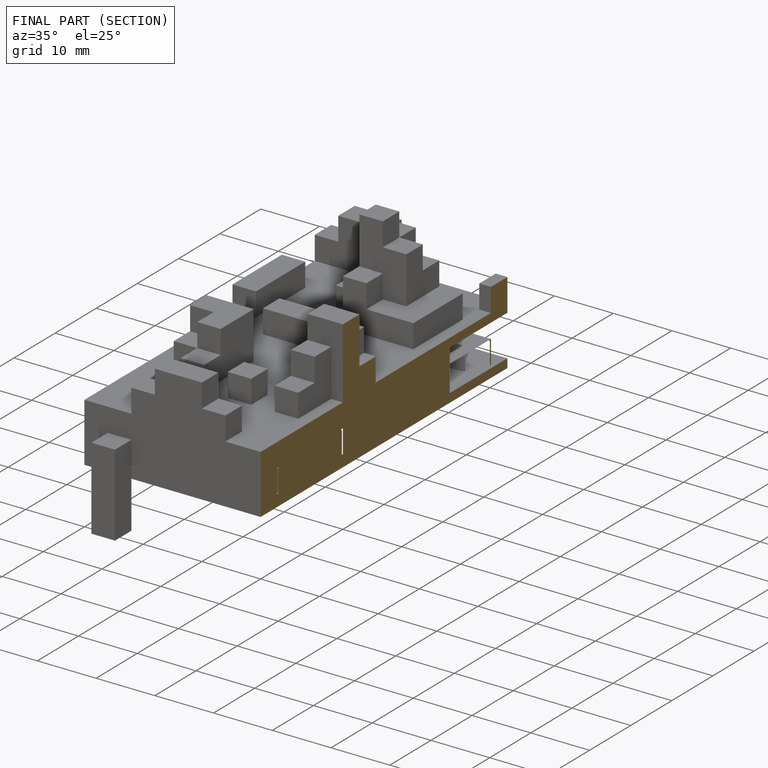
[diagram: finished part — half-section view (interior)]
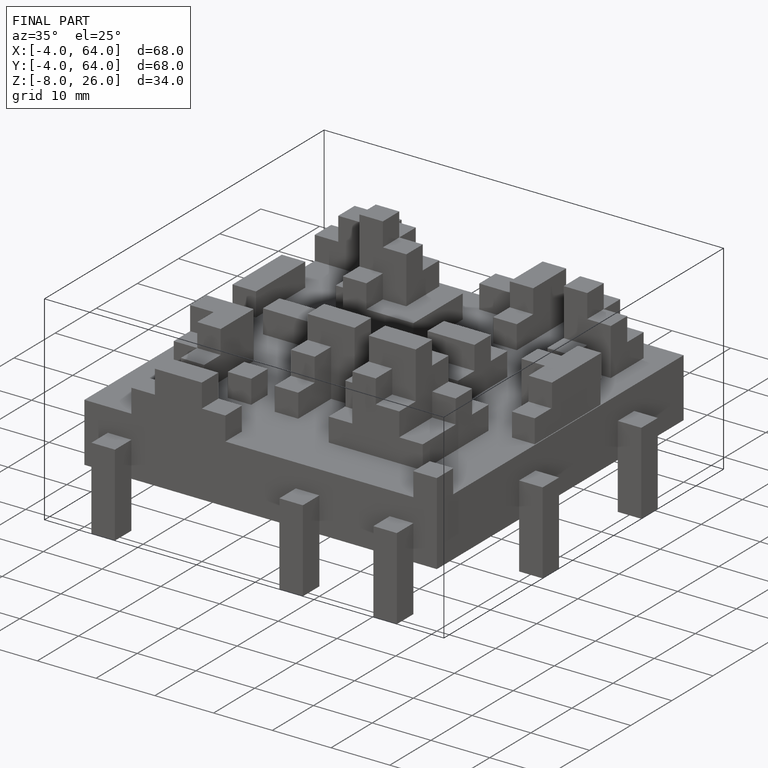
[diagram: finished part — iso view with bounding-box wireframe]
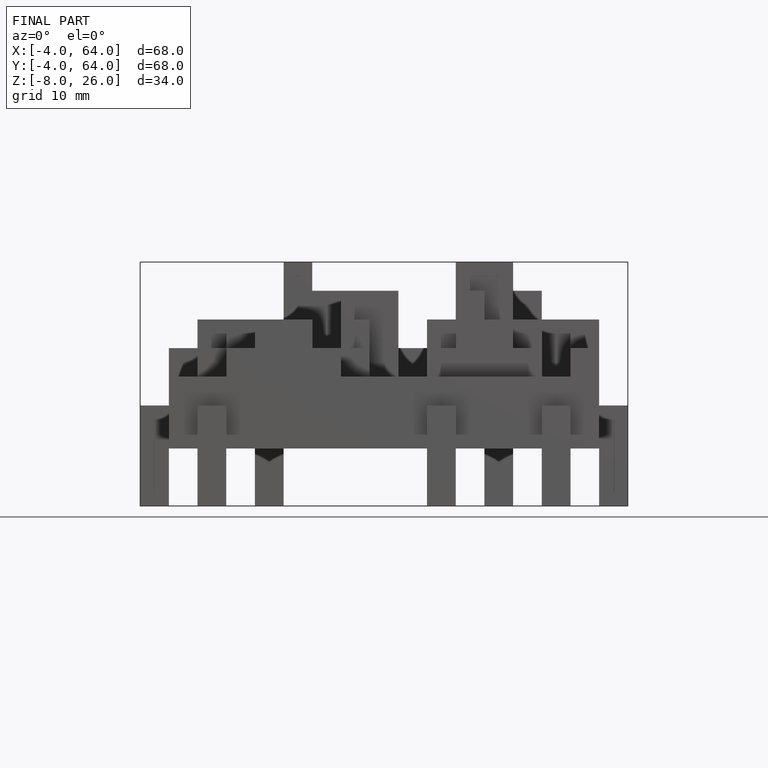
[diagram: finished part — front view with bounding-box wireframe]
